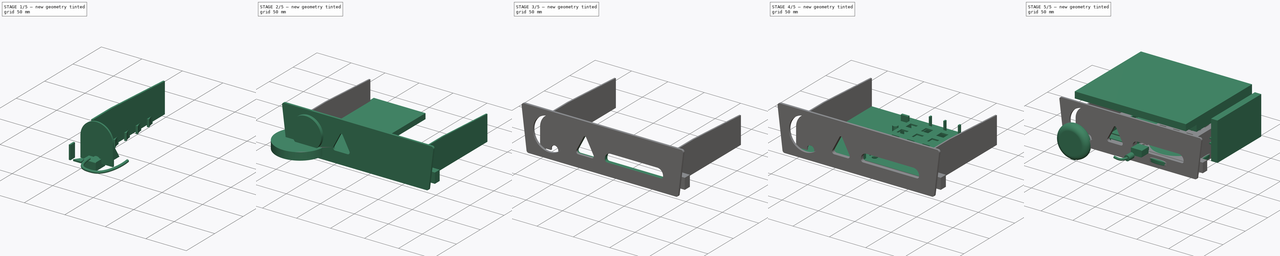
[diagram: build sequence overview — one tinted view per stage of 5, left to right]
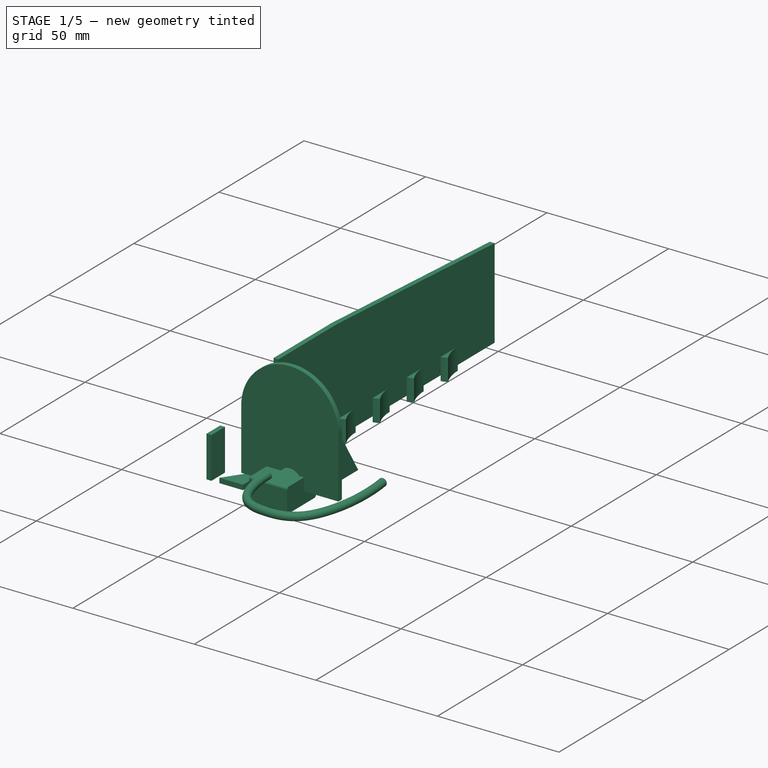
[diagram: stage 1 of 5 — iso view after this stage's code; geometry added in this stage tinted green]
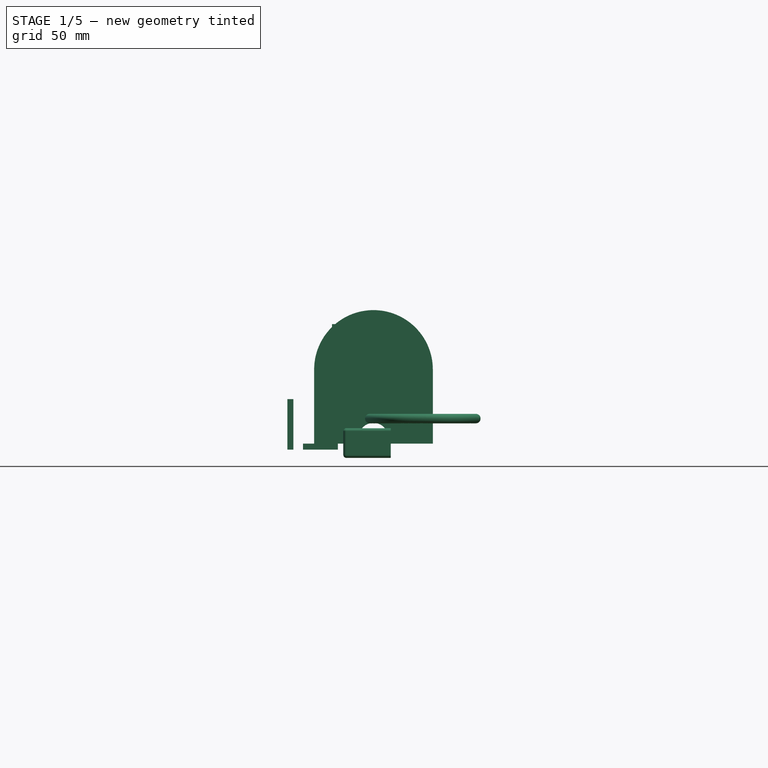
[diagram: stage 1 of 5 — front view after this stage's code; geometry added in this stage tinted green]
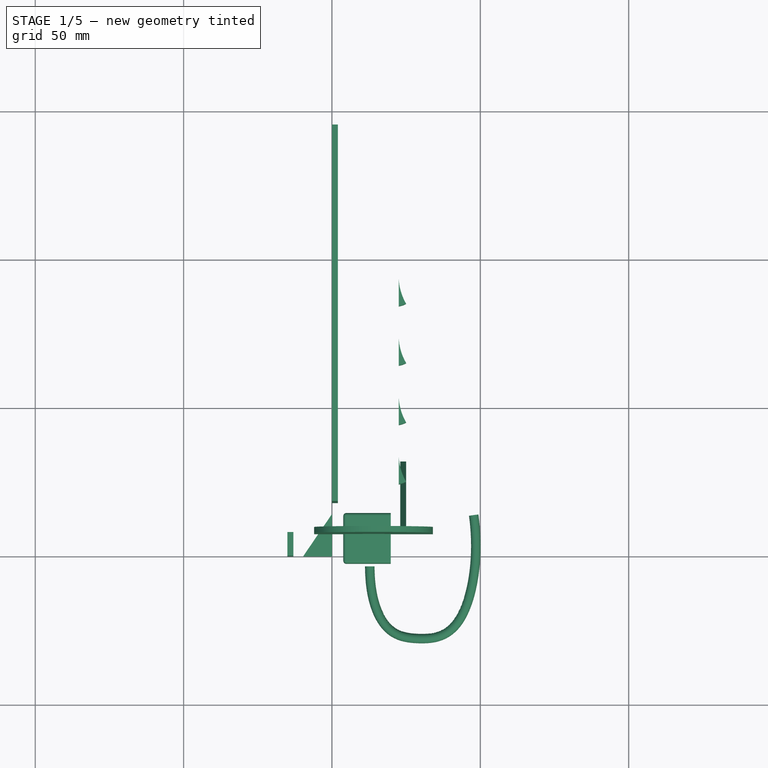
[diagram: stage 1 of 5 — top view after this stage's code; geometry added in this stage tinted green]
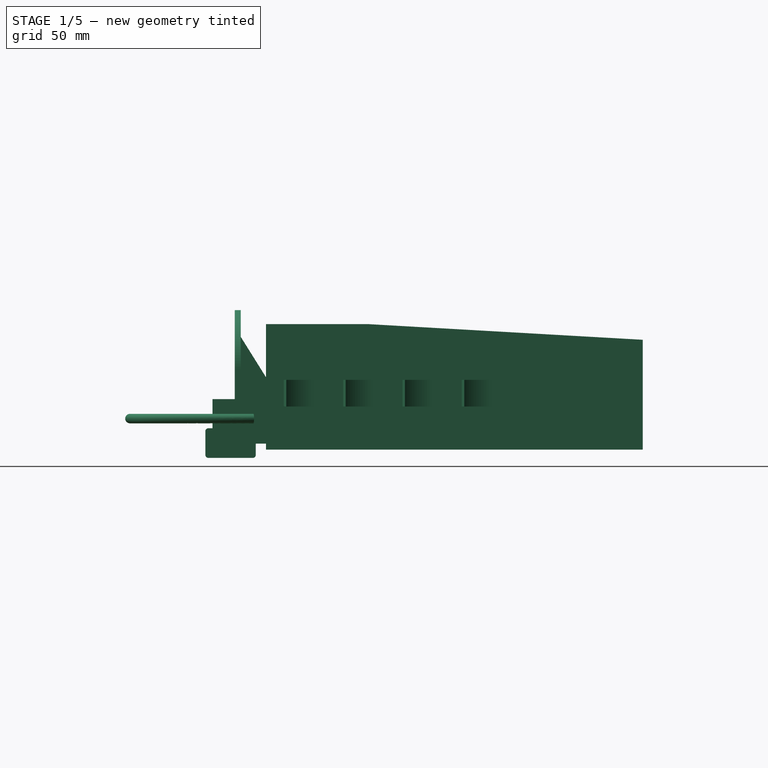
[diagram: stage 1 of 5 — right view after this stage's code; geometry added in this stage tinted green]
FCSTD DOCUMENT  (FreeCAD 0.18.1R)
Label: tray
License: All rights reserved
LicenseURL: http://en.wikipedia.org/wiki/All_rights_reserved
objects: Part::Box×49, Part::FeaturePython×37, Part::Mirroring×30, Part::Cut×28, Part::Cylinder×22, Sketcher::SketchObject×19, PartDesign::Body×15, PartDesign::Pad×14, Part::Fillet×12, Part::Compound×10, Part::MultiFuse×8, App::DocumentObjectGroup×6, Part::Offset×3, PartDesign::AdditivePipe×2, Part::Loft×2, Part::MultiCommon×2, Spreadsheet::Sheet×1, PartDesign::Pocket×1, Part::Cone×1
note: 272 computed .brp shape members not serialized (recipe doc carries the construction recipe); baked Part::Feature solids carry a one-line shape summary decoded from their .brp

FEATURE [Part::Box] Box  label="BottomBack"
  AttacherType = Attacher::AttachEngine3D
  Height = 2
  Length = 174
  Width = 145
  expr: Height = Spreadsheet.thickness
FEATURE [Sketcher::SketchObject] Sketch  label="SBSketch"
  Placement = pos=(0,0,0) rot=(0.57735,-0.57735,-0.57735;2.0944rad)
  expr: Constraints[6] = -(148 - Spreadsheet.face_thickness)
  sketch-geometry (6):
    g0: LineSegment StartX=-145 StartY=0 StartZ=0 EndX=-145 EndY=37 EndZ=0
    g1: LineSegment StartX=-145 StartY=37 StartZ=0 EndX=-52.151 EndY=42.2968 EndZ=0
    g2: LineSegment StartX=0 StartY=0 StartZ=0 EndX=0 EndY=42.2968 EndZ=0
    g3: LineSegment StartX=-52.151 StartY=42.2968 StartZ=0 EndX=0 EndY=42.2968 EndZ=0
    g4: LineSegment [constr] StartX=-52.151 StartY=42.2968 StartZ=0 EndX=-48 EndY=0 EndZ=0
    g5: LineSegment StartX=-145 StartY=0 StartZ=0 EndX=0 EndY=0 EndZ=0
  constraints (17):
    c: Vertical(g0)
    c: DistanceY(g0,g0) = 37
    c: Distance(g1) = 93
    c: Coincident(g1,g0)
    c: Horizontal(g3)
    c: Coincident(g2,g3)
    c: DistanceX(g0) = -145
    c: DistanceY(g0) = 0
    c: Coincident(g1,g3)
    c: Coincident(g-1,g2)
    c: Distance(g4) = 42.5
    c: PointOnObject(g4,g-1)
    c: Coincident(g4,g1)
    c: DistanceX(g0,g4) = 97
    c: Coincident(g5,g0)
    c: Coincident(g2,g5)
    c: DistanceX(g2,g2) = 0
FEATURE [Spreadsheet::Sheet] Spreadsheet
  cells = A1=thickness; B1(thickness)=2; A2=usbhub_thickness; B2(usbhub_thickness)=22.5; A3=usbhub_socket_width; B3(usbhub_socket_width)=15; A4=usbhub_socket_height; B4(usbhub_socket_height)=7.3; A5=usbhub_plug_hoffset; B5(usbhub_plug_hoffset)=20; A6=face_height; B6(face_height)=60; A7=face_top_length; B7(face_top_length)=223; A8=face_bottom_length; B8(face_bottom_length)=208; A9=face_thickness; B9(face_thickness)=3; A10=phonecradle_hrin_margin; B10(phonecradle_hrin_margin)=3; A11=usb_cable_diameter; B11(usb_cable_diameter)=3.5; A12=fit_clearance; B12(fit_clearance)=0.4; A13=blt_sticker_radius; B13(blt_sticker_radius)=20
FEATURE [Sketcher::SketchObject] Sketch002  label="UsbHubSketch"
  MapMode = 5
  Placement = pos=(0,0,0) rot=(1,0,0;1.5708rad)
  Support = -> [XZ_Plane002]
  expr: Constraints[10] = Spreadsheet.usbhub_thickness
  sketch-geometry (5):
    g0: LineSegment StartX=0 StartY=35.75 StartZ=0 EndX=15.5 EndY=35.75 EndZ=0
    g1: LineSegment StartX=15.5 StartY=35.75 StartZ=0 EndX=22.5 EndY=28 EndZ=0
    g2: LineSegment StartX=22.5 StartY=28 StartZ=0 EndX=22.5 EndY=0 EndZ=0
    g3: LineSegment StartX=22.5 StartY=0 StartZ=0 EndX=0 EndY=0 EndZ=0
    g4: LineSegment StartX=0 StartY=0 StartZ=0 EndX=0 EndY=35.75 EndZ=0
  constraints (15):
    c: Horizontal(g0)
    c: Coincident(g0,g1)
    c: Coincident(g1,g2)
    c: Coincident(g2,g3)
    c: Horizontal(g3)
    c: Coincident(g3,g4)
    c: Coincident(g4,g0)
    c: Vertical(g4)
    c: Vertical(g2)
    c: DistanceY(g4,g4) = 35.75
    c: DistanceX(g3,g3) = 22.5
    c: DistanceX(g0,g0) = 15.5
    c: DistanceY(g2,g2) = 28
    c: DistanceX(g3) = 0
    c: DistanceY(g3) = 0
FEATURE [PartDesign::Pad] Pad002  label="UsbHubMainBody"
  Length = 105
  Length2 = 100
  Placement = pos=(0,0,0) rot=(1,0,0;1.5708rad)
  Profile = -> Sketch002
  Reversed = true
  Type = 0
FEATURE [Sketcher::SketchObject] Sketch003  label="light"
  MapMode = 5
  Placement = pos=(26.3189,-5.3e-15,23.7719) rot=(0.406026,0,0.913862;3.14159rad)
  Support = -> [Pad002]
  sketch-geometry (21):
    g0: LineSegment StartX=14 StartY=-22 StartZ=0 EndX=8.5 EndY=-22 EndZ=0
    g1: LineSegment StartX=8.5 StartY=-22 StartZ=0 EndX=8.5 EndY=-37.5 EndZ=0
    g2: LineSegment StartX=8.5 StartY=-37.5 StartZ=0 EndX=14 EndY=-37.5 EndZ=0
    g3: LineSegment StartX=14 StartY=-37.5 StartZ=0 EndX=14 EndY=-22 EndZ=0
    g4: LineSegment StartX=14 StartY=-42 StartZ=0 EndX=8.5 EndY=-42 EndZ=0
    g5: LineSegment StartX=8.5 StartY=-42 StartZ=0 EndX=8.5 EndY=-57.5 EndZ=0
    g6: LineSegment StartX=8.5 StartY=-57.5 StartZ=0 EndX=14 EndY=-57.5 EndZ=0
    g7: LineSegment StartX=14 StartY=-57.5 StartZ=0 EndX=14 EndY=-42 EndZ=0
    g8: LineSegment [constr] StartX=14 StartY=-22 StartZ=0 EndX=14 EndY=-42 EndZ=0
    g9: LineSegment StartX=14 StartY=-62 StartZ=0 EndX=8.5 EndY=-62 EndZ=0
    g10: LineSegment StartX=8.5 StartY=-62 StartZ=0 EndX=8.5 EndY=-77.5 EndZ=0
    g11: LineSegment StartX=8.5 StartY=-77.5 StartZ=0 EndX=14 EndY=-77.5 EndZ=0
    g12: LineSegment StartX=14 StartY=-77.5 StartZ=0 EndX=14 EndY=-62 EndZ=0
    g13: LineSegment [constr] StartX=14 StartY=-42 StartZ=0 EndX=14 EndY=-62 EndZ=0
    g14: LineSegment StartX=14 StartY=-82 StartZ=0 EndX=8.5 EndY=-82 EndZ=0
    g15: LineSegment StartX=8.5 StartY=-82 StartZ=0 EndX=8.5 EndY=-97.5 EndZ=0
    g16: LineSegment StartX=8.5 StartY=-97.5 StartZ=0 EndX=14 EndY=-97.5 EndZ=0
    g17: LineSegment StartX=14 StartY=-97.5 StartZ=0 EndX=14 EndY=-82 EndZ=0
    g18: LineSegment [constr] StartX=14 StartY=-62 StartZ=0 EndX=14 EndY=-82 EndZ=0
    g19: LineSegment [constr] StartX=16 StartY=0 StartZ=0 EndX=16 EndY=-106.492 EndZ=0
    g20: LineSegment [constr] StartX=16 StartY=-25.5232 StartZ=0 EndX=14 EndY=-25.5232 EndZ=0
  constraints (59):
    c: Coincident(g0,g1)
    c: Coincident(g1,g2)
    c: Coincident(g2,g3)
    c: Coincident(g3,g0)
    c: Horizontal(g0)
    c: Horizontal(g2)
    c: Vertical(g1)
    c: Vertical(g3)
    c: DistanceY(g1,g1) = 15.5
    c: DistanceX(g2,g2) = 5.5
    c: DistanceY(g0) = -22
    c: Coincident(g4,g5)
    c: Coincident(g5,g6)
    c: Coincident(g6,g7)
    c: Coincident(g7,g4)
    c: Horizontal(g4)
    c: Horizontal(g6)
    c: Vertical(g5)
    c: Vertical(g7)
    c: DistanceY(g5,g5) = 15.5
    c: DistanceX(g6,g6) = 5.5
    c: Coincident(g0,g8)
    c: Coincident(g4,g8)
    c: Distance(g8) = 20
    c: Angle(g8) = -1.5708
    c: Coincident(g9,g10)
    c: Coincident(g10,g11)
    c: Coincident(g11,g12)
    c: Coincident(g12,g9)
    c: Horizontal(g9)
    c: Horizontal(g11)
    c: Vertical(g10)
    c: Vertical(g12)
    c: DistanceY(g10,g10) = 15.5
    c: DistanceX(g11,g11) = 5.5
    c: Coincident(g4,g13)
    c: Coincident(g9,g13)
    c: Equal(g8,g13)
    c: Parallel(g13,g8)
    c: Coincident(g14,g15)
    c: Coincident(g15,g16)
    c: Coincident(g16,g17)
    c: Coincident(g17,g14)
    c: Horizontal(g14)
    c: Horizontal(g16)
    c: Vertical(g15)
    c: Vertical(g17)
    c: DistanceY(g15,g15) = 15.5
    c: DistanceX(g16,g16) = 5.5
    c: Coincident(g9,g18)
    c: Coincident(g14,g18)
    c: Equal(g8,g18)
    c: Parallel(g18,g8)
    c: Vertical(g19)
    c: DistanceX(g19) = 16
    c: DistanceY(g19) = 0
    c: PointOnObject(g20,g19)
    c: PointOnObject(g20,g3)
    c: Distance(g20) = 2
FEATURE [PartDesign::Pad] Pad003  label="lights"
  BaseFeature = -> Pad002
  Length = 0.3
  Length2 = 100
  Placement = pos=(0,0,0) rot=(1,0,0;1.5708rad)
  Profile = -> Sketch003
  Type = 0
FEATURE [Part::Cylinder] Cylinder  label="Jack"
  Angle = 360
  AttacherType = Attacher::AttachEngine3D
  Height = 2
  Placement = pos=(11.75,0,26.5) rot=(1,0,0;1.5708rad)
  Radius = 1.75
  expr: Placement.Base.z = UsbHubBody.Placement.Base.z + 26.5mm
  expr: Placement.Base.y = UsbHubBody.Placement.Base.y
  expr: Placement.Base.x = UsbHubBody.Placement.Base.x + 10mm + Radius
FEATURE [Sketcher::SketchObject] Sketch004
  MapMode = 5
  Support = -> [XY_Plane003]
  sketch-geometry (9):
    g0: LineSegment StartX=4.82843 StartY=-2 StartZ=0 EndX=4.82843 EndY=2 EndZ=0
    g1: LineSegment StartX=4.82843 StartY=2 StartZ=0 EndX=2 EndY=4.82843 EndZ=0
    g2: LineSegment StartX=2 StartY=4.82843 StartZ=0 EndX=-2 EndY=4.82843 EndZ=0
    g3: LineSegment StartX=-2 StartY=4.82843 StartZ=0 EndX=-4.82843 EndY=2 EndZ=0
    g4: LineSegment StartX=-4.82843 StartY=2 StartZ=0 EndX=-4.82843 EndY=-2 EndZ=0
    g5: LineSegment StartX=-4.82843 StartY=-2 StartZ=0 EndX=-2 EndY=-4.82843 EndZ=0
    g6: LineSegment StartX=-2 StartY=-4.82843 StartZ=0 EndX=2 EndY=-4.82843 EndZ=0
    g7: LineSegment StartX=2 StartY=-4.82843 StartZ=0 EndX=4.82843 EndY=-2 EndZ=0
    g8: Circle [constr] CenterX=0 CenterY=0 CenterZ=0 NormalX=0 NormalY=0 NormalZ=1 AngleXU=0 Radius=5.22625
  constraints (21):
    c: Coincident(g0,g1)
    c: Coincident(g1,g2)
    c: Coincident(g2,g3)
    c: Coincident(g3,g4)
    c: Coincident(g4,g5)
    c: Coincident(g5,g6)
    c: Coincident(g6,g7)
    c: Coincident(g7,g0)
    c: Equal(g0, g1-g7) x7
    c: PointOnObject(g0,g8)
    c: PointOnObject(g1,g8)
    c: PointOnObject(g2,g8)
    c: PointOnObject(g3,g8)
    c: PointOnObject(g4,g8)
    c: PointOnObject(g5,g8)
    c: PointOnObject(g6,g8)
    c: PointOnObject(g7,g8)
    c: Distance(g7) = 4
    c: Horizontal(g2)
    c: DistanceX(g8) = 0
    c: DistanceY(g8) = 0
FEATURE [PartDesign::Pad] Pad004  label="PowerPlugHeight"
  Length = 21.5
  Length2 = 100
  Profile = -> Sketch004
  Type = 0
FEATURE [PartDesign::Body] Body003  label="PowerPlug"
  Group = -> [Sketch004,Pad004]
  Origin = -> Origin003
  Placement = pos=(11.75,-2,26.5) rot=(1,0,0;1.5708rad)
  Tip = -> Pad004
  expr: Placement.Base.z = Jack.Placement.Base.z
  expr: Placement.Base.y = Jack.Placement.Base.y - Jack.Height
  expr: Placement.Base.x = Jack.Placement.Base.x
FEATURE [Part::Cylinder] Cylinder001  label="Sleeve"
  Angle = 360
  AttacherType = Attacher::AttachEngine3D
  Height = 10
  Placement = pos=(11.75,-23.5,26.5) rot=(1,0,0;1.5708rad)
  Radius = 3.25
  expr: Placement.Base.z = PowerPlug.Placement.Base.z
  expr: Placement.Base.y = PowerPlug.Placement.Base.y - PowerPlugHeight.Length
  expr: Placement.Base.x = PowerPlug.Placement.Base.x
FEATURE [Sketcher::SketchObject] Sketch006
  MapMode = 5
  Support = -> [XY_Plane004]
  sketch-geometry (13):
    g0-g6: Circle [constr] x7 (B-spline internal-alignment scaffolding for g7; pole/knot coordinates omitted)
    g7: BSplineCurve PolesCount=7 KnotsCount=5 Degree=3 IsPeriodic=0
    g8-g12: GeomPoint [constr] x5 (B-spline internal-alignment scaffolding for g7; pole/knot coordinates omitted)
  constraints (9):
    c: Coincident(g7,g-1)
    c: Radius(g0) = 2
    c: Equal(g0,g1)
    c: PointOnObject(g1,g-1)
    c: Equal(g0, g2-g6) x5
    c: InternalAlignment(g0-g6 -> g7) x7
    c: InternalAlignment(g8-g12 -> g7) x5
    c: DistanceX(g3) = -25
    c: DistanceY(g5,g1) = 37
FEATURE [Sketcher::SketchObject] Sketch007
  MapMode = 5
  Placement = pos=(0,0,0) rot=(0.57735,0.57735,0.57735;2.0944rad)
  Support = -> [YZ_Plane004]
  sketch-geometry (1):
    g0: Circle CenterX=0 CenterY=0 CenterZ=0 NormalX=0 NormalY=0 NormalZ=1 AngleXU=0 Radius=1.6
  constraints (3):
    c: Radius(g0) = 1.6
    c: DistanceX(g0) = 0
    c: DistanceY(g0) = 0
FEATURE [Sketcher::SketchObject] Sketch010  label="PlugsSketch"
  MapMode = 5
  Placement = pos=(22.5,0,0) rot=(0.707107,0,0.707107;3.14159rad)
  Support = -> [Pad002]
  expr: Constraints[24] = Spreadsheet.usbhub_plug_hoffset
  expr: Constraints[34] = Spreadsheet.usbhub_socket_height
  expr: Constraints[48] = Spreadsheet.usbhub_socket_height
  expr: Constraints[8] = Spreadsheet.usbhub_socket_height
  expr: Constraints[20] = Spreadsheet.usbhub_socket_height
  expr: Constraints[49] = Spreadsheet.usbhub_socket_width
  expr: Constraints[35] = Spreadsheet.usbhub_socket_width
  expr: Constraints[21] = Spreadsheet.usbhub_socket_width
  expr: Constraints[9] = Spreadsheet.usbhub_socket_width
  sketch-geometry (38):
    g0: LineSegment StartX=10.3 StartY=-22 StartZ=0 EndX=3 EndY=-22 EndZ=0
    g1: LineSegment StartX=3 StartY=-22 StartZ=0 EndX=3 EndY=-37 EndZ=0
    g2: LineSegment StartX=3 StartY=-37 StartZ=0 EndX=10.3 EndY=-37 EndZ=0
    g3: LineSegment StartX=10.3 StartY=-37 StartZ=0 EndX=10.3 EndY=-22 EndZ=0
    g4: LineSegment StartX=10.3 StartY=-42 StartZ=0 EndX=3 EndY=-42 EndZ=0
    g5: LineSegment StartX=3 StartY=-42 StartZ=0 EndX=3 EndY=-57 EndZ=0
    g6: LineSegment StartX=3 StartY=-57 StartZ=0 EndX=10.3 EndY=-57 EndZ=0
    g7: LineSegment StartX=10.3 StartY=-57 StartZ=0 EndX=10.3 EndY=-42 EndZ=0
    g8: LineSegment [constr] StartX=10.3 StartY=-22 StartZ=0 EndX=10.3 EndY=-42 EndZ=0
    g9: LineSegment StartX=10.3 StartY=-62 StartZ=0 EndX=3 EndY=-62 EndZ=0
    g10: LineSegment StartX=3 StartY=-62 StartZ=0 EndX=3 EndY=-77 EndZ=0
    g11: LineSegment StartX=3 StartY=-77 StartZ=0 EndX=10.3 EndY=-77 EndZ=0
    g12: LineSegment StartX=10.3 StartY=-77 StartZ=0 EndX=10.3 EndY=-62 EndZ=0
    g13: LineSegment [constr] StartX=10.3 StartY=-42 StartZ=0 EndX=10.3 EndY=-62 EndZ=0
    g14: LineSegment StartX=10.3 StartY=-82 StartZ=0 EndX=3 EndY=-82 EndZ=0
    g15: LineSegment StartX=3 StartY=-82 StartZ=0 EndX=3 EndY=-97 EndZ=0
    g16: LineSegment StartX=3 StartY=-97 StartZ=0 EndX=10.3 EndY=-97 EndZ=0
    g17: LineSegment StartX=10.3 StartY=-97 StartZ=0 EndX=10.3 EndY=-82 EndZ=0
    g18: LineSegment [constr] StartX=10.3 StartY=-62 StartZ=0 EndX=10.3 EndY=-82 EndZ=0
    g19: LineSegment StartX=13.5 StartY=-22 StartZ=0 EndX=24.5 EndY=-22 EndZ=0
    g20: LineSegment StartX=24.5 StartY=-22 StartZ=0 EndX=24.5 EndY=-37 EndZ=0
    g21: LineSegment StartX=24.5 StartY=-37 StartZ=0 EndX=13.5 EndY=-37 EndZ=0
    g22: LineSegment StartX=13.5 StartY=-37 StartZ=0 EndX=13.5 EndY=-22 EndZ=0
    g23: LineSegment StartX=13.5116 StartY=-42 StartZ=0 EndX=24.5116 EndY=-42 EndZ=0
    g24: LineSegment StartX=24.5116 StartY=-42 StartZ=0 EndX=24.5116 EndY=-57 EndZ=0
    g25: LineSegment StartX=24.5116 StartY=-57 StartZ=0 EndX=13.5116 EndY=-57 EndZ=0
    g26: LineSegment StartX=13.5116 StartY=-57 StartZ=0 EndX=13.5116 EndY=-42 EndZ=0
    g27: LineSegment [constr] StartX=13.5 StartY=-22 StartZ=0 EndX=13.5116 EndY=-42 EndZ=0
    g28: LineSegment StartX=13.5232 StartY=-62 StartZ=0 EndX=24.5232 EndY=-62 EndZ=0
    g29: LineSegment StartX=24.5232 StartY=-62 StartZ=0 EndX=24.5232 EndY=-77 EndZ=0
    g30: LineSegment StartX=24.5232 StartY=-77 StartZ=0 EndX=13.5232 EndY=-77 EndZ=0
    g31: LineSegment StartX=13.5232 StartY=-77 StartZ=0 EndX=13.5232 EndY=-62 EndZ=0
    g32: LineSegment [constr] StartX=13.5116 StartY=-42 StartZ=0 EndX=13.5232 EndY=-62 EndZ=0
    g33: LineSegment StartX=13.5349 StartY=-82 StartZ=0 EndX=24.5349 EndY=-82 EndZ=0
    g34: LineSegment StartX=24.5349 StartY=-82 StartZ=0 EndX=24.5349 EndY=-97 EndZ=0
    g35: LineSegment StartX=24.5349 StartY=-97 StartZ=0 EndX=13.5349 EndY=-97 EndZ=0
    g36: LineSegment StartX=13.5349 StartY=-97 StartZ=0 EndX=13.5349 EndY=-82 EndZ=0
    g37: LineSegment [constr] StartX=13.5232 StartY=-62 StartZ=0 EndX=13.5349 EndY=-82 EndZ=0
  constraints (108):
    c: Coincident(g0,g1)
    c: Coincident(g1,g2)
    c: Coincident(g2,g3)
    c: Coincident(g3,g0)
    c: Horizontal(g0)
    c: Horizontal(g2)
    c: Vertical(g1)
    c: Vertical(g3)
    c: DistanceX(g2,g2) = 7.3
    c: DistanceY(g3,g3) = 15
    c: DistanceX(g0) = 3
    c: DistanceY(g0) = -22
    c: Coincident(g4,g5)
    c: Coincident(g5,g6)
    c: Coincident(g6,g7)
    c: Coincident(g7,g4)
    c: Horizontal(g4)
    c: Horizontal(g6)
    c: Vertical(g5)
    c: Vertical(g7)
    c: DistanceX(g6,g6) = 7.3
    c: DistanceY(g7,g7) = 15
    c: Coincident(g0,g8)
    c: Coincident(g4,g8)
    c: Distance(g8) = 20
    c: Angle(g8) = -1.5708
    c: Coincident(g9,g10)
    c: Coincident(g10,g11)
    c: Coincident(g11,g12)
    c: Coincident(g12,g9)
    c: Horizontal(g9)
    c: Horizontal(g11)
    c: Vertical(g10)
    c: Vertical(g12)
    c: DistanceX(g11,g11) = 7.3
    c: DistanceY(g12,g12) = 15
    c: Coincident(g4,g13)
    c: Coincident(g9,g13)
    c: Equal(g8,g13)
    c: Parallel(g13,g8)
    c: Coincident(g14,g15)
    c: Coincident(g15,g16)
    c: Coincident(g16,g17)
    c: Coincident(g17,g14)
    c: Horizontal(g14)
    c: Horizontal(g16)
    c: Vertical(g15)
    c: Vertical(g17)
    c: DistanceX(g16,g16) = 7.3
    c: DistanceY(g17,g17) = 15
    c: Coincident(g9,g18)
    c: Coincident(g14,g18)
    c: Equal(g8,g18)
    c: Parallel(g18,g8)
    c: Coincident(g19,g20)
    c: Coincident(g20,g21)
    c: Coincident(g21,g22)
    c: Coincident(g22,g19)
    c: Horizontal(g19)
    c: Horizontal(g21)
    c: Vertical(g20)
    c: Vertical(g22)
    c: Distance(g19) = 11
    c: Distance(g20) = 15
    c: DistanceY(g0,g19) = 0
    c: DistanceX(g0,g19) = 3.2
    c: Coincident(g23,g24)
    c: Coincident(g24,g25)
    c: Coincident(g25,g26)
    c: Coincident(g26,g23)
    c: Horizontal(g23)
    c: Horizontal(g25)
    c: Vertical(g24)
    c: Vertical(g26)
    c: Distance(g23) = 11
    c: Distance(g24) = 15
    c: Coincident(g19,g27)
    c: Coincident(g23,g27)
    c: Distance(g27) = 20
    c: Angle(g27) = -1.57022
    c: Coincident(g28,g29)
    c: Coincident(g29,g30)
    c: Coincident(g30,g31)
    c: Coincident(g31,g28)
    c: Horizontal(g28)
    c: Horizontal(g30)
    c: Vertical(g29)
    c: Vertical(g31)
    c: Distance(g28) = 11
    c: Distance(g29) = 15
    c: Coincident(g23,g32)
    c: Coincident(g28,g32)
    c: Equal(g27,g32)
    c: Parallel(g32,g27)
    c: Coincident(g33,g34)
    c: Coincident(g34,g35)
    c: Coincident(g35,g36)
    c: Coincident(g36,g33)
    c: Horizontal(g33)
    c: Horizontal(g35)
    c: Vertical(g34)
    c: Vertical(g36)
    c: Distance(g33) = 11
    c: Distance(g34) = 15
    c: Coincident(g28,g37)
    c: Coincident(g33,g37)
    c: Equal(g27,g37)
    c: Parallel(g37,g27)
FEATURE [PartDesign::Pocket] Pocket
  BaseFeature = -> Pad003
  Length = 2
  Length2 = 100
  Placement = pos=(0,0,0) rot=(1,0,0;1.5708rad)
  Profile = -> Sketch010
  Type = 0
FEATURE [PartDesign::Body] Body002  label="UsbHubBody"
  Group = -> [Sketch002,Pad002,Sketch003,Pad003,Sketch010,Pocket]
  Origin = -> Origin002
  Tip = -> Pocket
  expr: Placement.Base.z = 0
  expr: Placement.Base.y = 0
FEATURE [Part::Box] Box001  label="UsbJack"
  AttacherType = Attacher::AttachEngine3D
  Height = 4.4
  Length = 3.83
  Width = 12.15
FEATURE [PartDesign::AdditivePipe] AdditivePipe
  AuxilleryCurvelinear = true
  AuxillerySpineTangent = false
  Binormal = (0,0,0)
  Mode = 0
  Placement = pos=(0,0,0) rot=(0.57735,0.57735,0.57735;2.0944rad)
  Profile = -> Sketch007
  Spine = -> Sketch006 [Edge1]
  SpineTangent = false
  Transformation = 0
  Transition = 0
FEATURE [PartDesign::Body] Body006  label="UsbCord"
  Group = -> [Sketch013,Sketch015,AdditivePipe001]
  Origin = -> Origin007
  Placement = pos=(40.83,6.075,2.2) rot=(1,0,0;2.96706rad)
  Tip = -> AdditivePipe001
  expr: Placement.Base.z = UsbJack.Placement.Base.z + UsbJack.Height / 2
  expr: Placement.Base.x = UsbSleeve.Placement.Base.x + UsbSleeve.Height
  expr: Placement.Base.y = UsbJack.Placement.Base.y + UsbJack.Width / 2
FEATURE [Part::Box] Box002  label="UsbBodyFrontCube"
  AttacherType = Attacher::AttachEngine3D
  Height = 10
  Length = 16
  Placement = pos=(3.83,-2.425,-2.8) rot=(0,0,1;0rad)
  Width = 17
  expr: Placement.Base.z = UsbJack.Placement.Base.z + UsbJack.Height / 2 - Height / 2
  expr: Placement.Base.y = UsbJack.Placement.Base.y + UsbJack.Width / 2 - Width / 2
  expr: Placement.Base.x = UsbJack.Placement.Base.x + UsbJack.Length
FEATURE [Part::Fillet] Fillet  label="UsbBodyFront"
  Base = -> Box002
  Edges = 8 edges r=1: [Edge1,Edge2,Edge3,Edge4,Edge9,Edge10,Edge11,Edge12]
FEATURE [Part::Cylinder] Cylinder006  label="BluetoothBody"
  Angle = 360
  AttacherType = Attacher::AttachEngine3D
  Height = 12.5
  Placement = pos=(0,0,0) rot=(1,0,0;1.5708rad)
  Radius = 25
FEATURE [Sketcher::SketchObject] Sketch020
  MapMode = 5
  Placement = pos=(0,0,0) rot=(1,0,0;1.5708rad)
  Support = -> [XZ_Plane012]
  expr: Constraints[4] = Spreadsheet.face_top_length
  expr: Constraints[5] = Spreadsheet.face_bottom_length
  expr: Constraints[6] = Spreadsheet.face_height
  sketch-geometry (4):
    g0: LineSegment StartX=-111.5 StartY=60 StartZ=0 EndX=111.5 EndY=60 EndZ=0
    g1: LineSegment StartX=111.5 StartY=60 StartZ=0 EndX=104 EndY=0 EndZ=0
    g2: LineSegment StartX=104 StartY=0 StartZ=0 EndX=-104 EndY=0 EndZ=0
    g3: LineSegment StartX=-104 StartY=0 StartZ=0 EndX=-111.5 EndY=60 EndZ=0
  constraints (10):
    c: Coincident(g0,g1)
    c: Coincident(g1,g2)
    c: Coincident(g2,g3)
    c: Coincident(g3,g0)
    c: Distance(g0) = 223
    c: Distance(g2) = 208
    c: DistanceY(g2,g0) = 60
    c: Symmetric(g0,g0,g-2)
    c: Symmetric(g1,g2,g-2)
    c: DistanceY(g2) = 0
FEATURE [PartDesign::Pad] Pad009
  Length = 3
  Length2 = 100
  Placement = pos=(0,0,0) rot=(1,0,0;1.5708rad)
  Profile = -> Sketch020
  Type = 0
  expr: Length = Spreadsheet.face_thickness
FEATURE [PartDesign::Body] Body011  label="FaceRect"
  Group = -> [Sketch020,Pad009]
  Origin = -> Origin012
  Placement = pos=(87,0,-4) rot=(1,0,0;0rad)
  Tip = -> Pad009
  expr: Placement.Base.y = BottomBack.Placement.Base.y
  expr: Placement.Base.x = BottomBack.Placement.Base.x + BottomBack.Length / 2
FEATURE [Part::Fillet] Fillet008  label="Face"
  Base = -> Body011
  Edges = 4 edges r=3: [Edge1,Edge2,Edge5,Edge8]
FEATURE [PartDesign::Pad] Pad  label="SidePad"
  Length = 2
  Length2 = 100
  Placement = pos=(0,0,0) rot=(0.57735,-0.57735,-0.57735;2.0944rad)
  Profile = -> Sketch
  Reversed = true
  Type = 0
  expr: Length = Spreadsheet.thickness
FEATURE [Part::Box] Box012  label="Front"
  AttacherType = Attacher::AttachEngine3D
  Height = 54
  Length = 204
  Placement = pos=(-15,0,0) rot=(0,0,1;0rad)
  Width = 2
  expr: Placement.Base.x = BottomBack.Placement.Base.x + (BottomBack.Length - Length) / 2
  expr: Width = Spreadsheet.thickness
  expr: Length = BottomBack.Length + 2 * 15mm
FEATURE [Part::Cylinder] Cylinder008  label="BluetoothSleeve"
  Angle = 360
  AttacherType = Attacher::AttachEngine3D
  Height = 7
  Placement = pos=(0,-3.35,-23) rot=(-1,0,0;1.5708rad)
  Radius = 2
  expr: Placement.Base.z = Bluetooth.Placement.Base.z - BluetoothBody.Radius + Radius
  expr: Placement.Base.y = Bluetooth.Placement.Base.y
  expr: Placement.Base.x = Bluetooth.Placement.Base.x
FEATURE [Sketcher::SketchObject] Sketch021
  MapMode = 5
  Support = -> [XY_Plane013]
  sketch-geometry (5):
    g0: LineSegment StartX=-6.926e-13 StartY=10 StartZ=0 EndX=-6.926e-13 EndY=-4.09e-14 EndZ=0
    g1: LineSegment [constr] StartX=0 StartY=0.834849 StartZ=0 EndX=2.5 EndY=0.834849 EndZ=0
    g2: LineSegment [constr] StartX=-6.926e-13 StartY=10 StartZ=0 EndX=2.5 EndY=0.834849 EndZ=0
    g3: ArcOfCircle CenterX=18.4098 CenterY=10.0982 CenterZ=0 NormalX=0 NormalY=0 NormalZ=1 AngleXU=0 Radius=18.4101 StartAngle=3.14692 EndAngle=3.66885
    g4: ArcOfCircle CenterX=-1.19715 CenterY=7.74556 CenterZ=0 NormalX=0 NormalY=0 NormalZ=1 AngleXU=0 Radius=7.83753 StartAngle=4.86574 EndAngle=5.20363
  constraints (16):
    c: Vertical(g0)
    c: Distance(g0) = 10
    c: Horizontal(g1)
    c: Distance(g1) = 2.5
    c: PointOnObject(g1,g0)
    c: Coincident(g2,g0)
    c: Coincident(g2,g1)
    c: Coincident(g3,g1)
    c: Coincident(g4,g3)
    c: Coincident(g0,g4)
    c: Coincident(g0,g3)
    c: Distance(g2) = 9.5
    c: DistanceX(g3,g0) = -18.4098
    c: DistanceX(g4,g0) = 1.19715
    c: DistanceX(g0) = 0
    c: DistanceY(g0) = 0
FEATURE [PartDesign::Pad] Pad010  label="Pad011"
  Length = 9
  Length2 = 100
  Profile = -> Sketch021
  Type = 0
FEATURE [PartDesign::Body] Body012  label="HubButtonBody"
  Group = -> [Sketch021,Pad010]
  Origin = -> Origin013
  Tip = -> Pad010
FEATURE [Part::FeaturePython] Array002  label="UsbHubButtons"  # Draft array (typed FeaturePython)
  Angle = 360
  ArrayType = 0
  Axis = (0,0,1)
  Base = -> Body012
  Center = (0,0,0)
  Fuse = false
  IntervalAxis = (0,0,0)
  IntervalX = (1,0,0)
  IntervalY = (0,20,0)
  IntervalZ = (0,0,1)
  NumberPolar = 1
  NumberX = 1
  NumberY = 4
  NumberZ = 1
  Placement = pos=(22.5,24,14.5) rot=(0,0,1;0rad)
  expr: Placement.Base.z = UsbHubBody.Placement.Base.z + 14.5mm
  expr: Placement.Base.x = UsbHubBody.Placement.Base.x + Spreadsheet.usbhub_thickness * 1mm
FEATURE [Part::Cylinder] Cylinder011  label="UsbhHubUsbSleeve"
  Angle = 360
  AttacherType = Attacher::AttachEngine3D
  Height = 3.5
  Placement = pos=(12.75,0,10.45) rot=(1,0,0;1.5708rad)
  Radius = 2.75
  expr: Placement.Base.z = UsbHubBody.Placement.Base.z + 13.2mm - Radius
  expr: Placement.Base.y = UsbHubBody.Placement.Base.y
  expr: Placement.Base.x = UsbHubBody.Placement.Base.x + 10mm + Radius
FEATURE [Part::FeaturePython] Clone004  label="Cable001"  # Draft clone (typed FeaturePython)
  AttacherType = Attacher::AttachEngine3D
  Fuse = false
  Objects = -> [Body004]
  Placement = pos=(12.75,-3.5,10.45) rot=(0,0,1;1.5708rad)
  Scale = (1,1,1)
  expr: Placement.Base.z = UsbhHubUsbSleeve.Placement.Base.z
  expr: Placement.Base.y = UsbhHubUsbSleeve.Placement.Base.y - UsbhHubUsbSleeve.Height
  expr: Placement.Base.x = UsbhHubUsbSleeve.Placement.Base.x
FEATURE [Part::Box] Box044  label="SideBottomBump"
  AttacherType = Attacher::AttachEngine3D
  Height = 15
  Length = 16.5
  Placement = pos=(-17,10.5,0) rot=(0,0,1;0rad)
  Width = 10
  expr: Placement.Base.y = Face.Placement.Base.x + 13.5mm - Spreadsheet.face_thickness * 1mm
  expr: Placement.Base.x = BottomBack.Placement.Base.x + BottomBack.Length / 2 - Spreadsheet.face_bottom_length / 2 * 1mm
FEATURE [Part::Cone] Cone  label="Bluetooth"
  Angle = 360
  AttacherType = Attacher::AttachEngine3D
  Height = 12.5
  Placement = pos=(0,-3.35,0) rot=(1,0,0;1.5708rad)
  Radius1 = 25
  Radius2 = 22.75
  expr: Placement.Base.y = BluetoothBase.Placement.Base.y - BluetoothBase.Height
FEATURE [Part::Cylinder] Cylinder019  label="BluetoothBase"
  Angle = 360
  AttacherType = Attacher::AttachEngine3D
  Height = 3.35
  Placement = pos=(0,0,0) rot=(1,0,0;1.5708rad)
  Radius = 24
FEATURE [Part::Fillet] Fillet011
  Base = -> Cylinder019
  Edges = 1 edges r=3.35: [Edge3]
FEATURE [Part::Compound] Compound005  label="BluetoothCmp"
  Links = -> [Cylinder008,Cone,Fillet011]
  Placement = pos=(14,7.5,27) rot=(0,0,1;0rad)
  expr: Placement.Base.z = BottomBack.Placement.Base.z + Spreadsheet.thickness * 1mm + BluetoothBody.Radius + 2mm - 2mm
  expr: Placement.Base.y = SideBottomBump.Placement.Base.y - 3mm
FEATURE [Part::Box] Box046  label="BltBack"
  AttacherType = Attacher::AttachEngine3D
  Height = 45
  Length = 40
  Placement = pos=(-6,7.5,2) rot=(0,0,1;0rad)
  Width = 2
  expr: Placement.Base.z = BottomBack.Placement.Base.z + BottomBack.Height
  expr: Height = BluetoothCmp.Placement.Base.z + Spreadsheet.blt_sticker_radius * 1mm - BottomBack.Placement.Base.z - BottomBack.Height
  expr: Placement.Base.y = BluetoothCmp.Placement.Base.y
  expr: Placement.Base.x = BluetoothCmp.Placement.Base.x - Length / 2
FEATURE [Part::Cylinder] Cylinder020  label="BltBackHoleRound"
  Angle = 360
  AttacherType = Attacher::AttachEngine3D
  Height = 4
  Placement = pos=(14,10.5,4) rot=(1,0,0;1.5708rad)
  Radius = 5
  expr: Placement.Base.y = BltBack.Placement.Base.y + BltBack.Width / 2 + Height / 2
  expr: Placement.Base.x = BltBack.Placement.Base.x + BltBack.Length / 2
  expr: Placement.Base.z = BluetoothCmp.Placement.Base.z + BluetoothSleeve.Placement.Base.z
  expr: Height = 2 * BltBack.Width
FEATURE [Part::Cut] Cut024
  Base = -> Box046
  Tool = -> Cylinder020
FEATURE [Part::Box] Box047  label="BltBackHoleRect"
  AttacherType = Attacher::AttachEngine3D
  Height = 5
  Length = 10
  Placement = pos=(9,6.5,-1) rot=(0,0,1;0rad)
  Width = 4
  expr: Placement.Base.y = BltBackHoleRound.Placement.Base.y - BltBackHoleRound.Height
  expr: Placement.Base.x = BltBackHoleRound.Placement.Base.x - Length / 2
  expr: Placement.Base.z = BltBackHoleRound.Placement.Base.z - Height
  expr: Height = BltBackHoleRound.Radius
  expr: Width = BltBackHoleRound.Height
  expr: Length = BltBackHoleRound.Radius * 2
FEATURE [Part::Cut] Cut025
  Base = -> Cut024
  Tool = -> Box047
FEATURE [Sketcher::SketchObject] Sketch024
  MapMode = 5
  Placement = pos=(0,0,0) rot=(0.57735,0.57735,0.57735;2.0944rad)
  Support = -> [YZ_Plane016]
  expr: Constraints[6] = BltBack.Height / 2
  expr: Constraints[5] = BltBack.Height * 4 / 5
  sketch-geometry (3):
    g0: LineSegment StartX=0 StartY=36 StartZ=0 EndX=0 EndY=0 EndZ=0
    g1: LineSegment StartX=0 StartY=0 StartZ=0 EndX=22.5 EndY=0 EndZ=0
    g2: LineSegment StartX=22.5 StartY=0 StartZ=0 EndX=0 EndY=36 EndZ=0
  constraints (9):
    c: Vertical(g0)
    c: Coincident(g0,g1)
    c: Horizontal(g1)
    c: Coincident(g1,g2)
    c: Coincident(g2,g0)
    c: Distance(g0) = 36
    c: Distance(g1) = 22.5
    c: DistanceX(g0) = 0
    c: DistanceY(g0) = 0
FEATURE [PartDesign::Pad] Pad013  label="BltBackSupportLPad"
  Length = 2
  Length2 = 100
  Placement = pos=(0,0,0) rot=(0.57735,0.57735,0.57735;2.0944rad)
  Profile = -> Sketch024
  Type = 0
  expr: Length = Spreadsheet.thickness
FEATURE [PartDesign::Body] Body015  label="BltBackSupportL"
  Group = -> [Sketch024,Pad013]
  Origin = -> Origin016
  Placement = pos=(3,9.5,2) rot=(0,0,1;0rad)
  Tip = -> Pad013
  expr: Placement.Base.z = BltBack.Placement.Base.z
  expr: Placement.Base.y = BltBack.Placement.Base.y + BltBack.Width
FEATURE [Part::Mirroring] Part__Mirroring030  label="BltBackSupportR"
  Base = (14,0,0)
  Normal = (1,0,0)
  Source = -> Body015
  expr: Base.x = BltBack.Placement.Base.x + BltBack.Length / 2
FEATURE [Part::Cylinder] Cylinder021  label="BltStickPlaceholder"
  Angle = 360
  AttacherType = Attacher::AttachEngine3D
  Height = 2
  Placement = pos=(14,9.5,27) rot=(1,0,0;1.5708rad)
  Radius = 20
  expr: Placement.Base.y = BltBack.Placement.Base.y + BltBack.Width
  expr: Placement.Base.x = BluetoothCmp.Placement.Base.x
  expr: Placement.Base.z = BluetoothCmp.Placement.Base.z
  expr: Height = BltBack.Width
FEATURE [Part::Box] Box048  label="Cube"
  AttacherType = Attacher::AttachEngine3D
  Height = 20
  Length = 40
  Placement = pos=(-6,7.5,27) rot=(0,0,1;0rad)
  Width = 2
  expr: Placement.Base.y = BltStickPlaceholder.Placement.Base.y - BltStickPlaceholder.Height
  expr: Placement.Base.x = BltStickPlaceholder.Placement.Base.x - Length / 2
  expr: Placement.Base.z = BltStickPlaceholder.Placement.Base.z
  expr: Height = BltStickPlaceholder.Radius
  expr: Width = BltBack.Width
  expr: Length = BltBack.Length
FEATURE [Part::Cut] Cut026
  Base = -> Box048
  Tool = -> Cylinder021
FEATURE [Part::Cut] Cut027
  Base = -> Cut025
  Tool = -> Cut026
FEATURE [Part::Box] Box049  label="Cube031"
  AttacherType = Attacher::AttachEngine3D
  Height = 50
  Length = 10
  Placement = pos=(-4,-2,0) rot=(0,0,1;0rad)
  Width = 20
FEATURE [Part::Cut] Cut028
  Base = -> Pad
  Tool = -> Box049
FEATURE [Part::Box] Box050  label="Cube032"
  AttacherType = Attacher::AttachEngine3D
  Height = 25.3
  Length = 14
  Placement = pos=(-14,18,17) rot=(0,0,1;0rad)
  Width = 2
  expr: Placement.Base.y = Cube031.Placement.Base.y + Cube031.Width
  expr: Width = Spreadsheet.thickness
FEATURE [Part::Box] Box051  label="Cube033"
  AttacherType = Attacher::AttachEngine3D
  Height = 25.3
  Length = 2
  Placement = pos=(-15,0,17) rot=(0,0,1;0rad)
  Width = 20
  expr: Width = Cube032.Placement.Base.y + Cube032.Width - Front.Placement.Base.y
  expr: Placement.Base.y = Cube032.Placement.Base.y + Cube032.Width - Width
  expr: Length = Spreadsheet.thickness
FEATURE [Sketcher::SketchObject] Sketch025
  MapMode = 5
  Support = -> [XY_Plane017]
  sketch-geometry (3):
    g0: LineSegment StartX=-9.73898 StartY=0 StartZ=0 EndX=0 EndY=0 EndZ=0
    g1: LineSegment StartX=0 StartY=0 StartZ=0 EndX=0 EndY=14.2983 EndZ=0
    g2: LineSegment StartX=0 StartY=14.2983 StartZ=0 EndX=-9.73898 EndY=0 EndZ=0
  constraints (8):
    c: Horizontal(g0)
    c: Coincident(g0,g1)
    c: Vertical(g1)
    c: Coincident(g1,g2)
    c: Coincident(g2,g0)
    c: Distance(g2) = 17.3
    c: DistanceX(g0) = 0
    c: DistanceY(g0) = 0
FEATURE [PartDesign::Pad] Pad014  label="Pad015"
  Length = 2
  Length2 = 100
  Profile = -> Sketch025
  Type = 0
  expr: Length = Spreadsheet.thickness
FEATURE [PartDesign::Body] Body016
  Group = -> [Sketch025,Pad014]
  Origin = -> Origin017
  Placement = pos=(0,20,30) rot=(0,0,1;0rad)
  Tip = -> Pad014
  expr: Placement.Base.x = 0
  expr: Placement.Base.y = Cube032.Placement.Base.y + Cube032.Width
FEATURE [Part::Box] Box052  label="Cube034"
  AttacherType = Attacher::AttachEngine3D
  Height = 17
  Length = 2
  Placement = pos=(-15,0,0) rot=(0,0,1;0rad)
  Width = 8
  expr: Placement.Base.x = Cube033.Placement.Base.x
  expr: Height = Cube033.Placement.Base.z - BottomBack.Placement.Base.z
  expr: Length = Spreadsheet.thickness
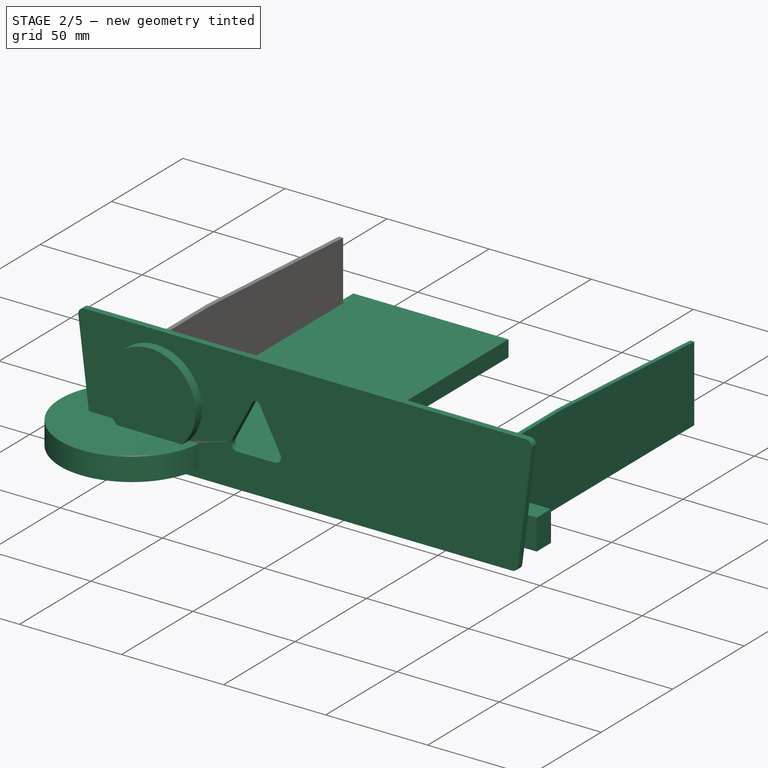
[diagram: stage 2 of 5 — iso view after this stage's code; geometry added in this stage tinted green]
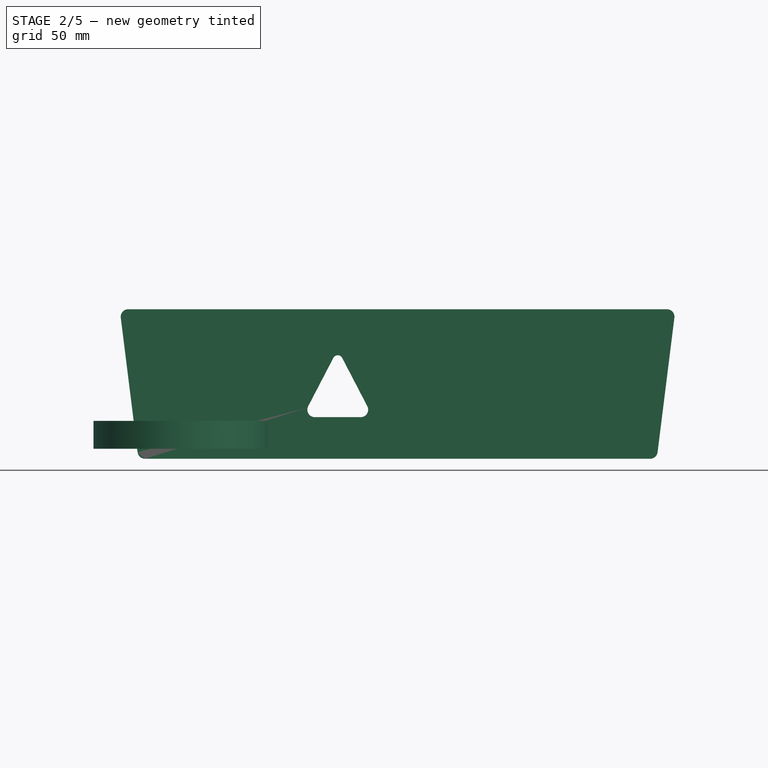
[diagram: stage 2 of 5 — front view after this stage's code; geometry added in this stage tinted green]
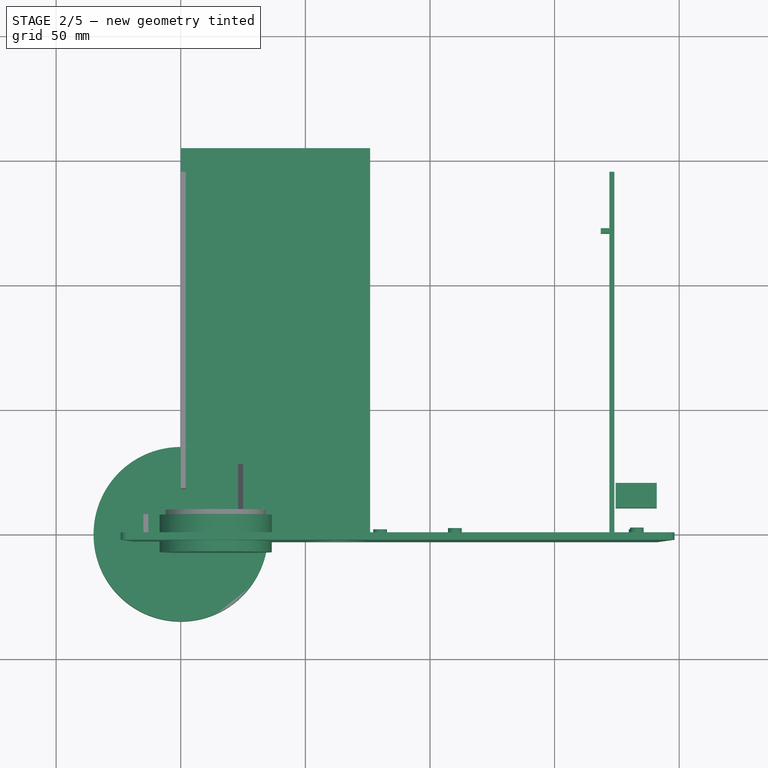
[diagram: stage 2 of 5 — top view after this stage's code; geometry added in this stage tinted green]
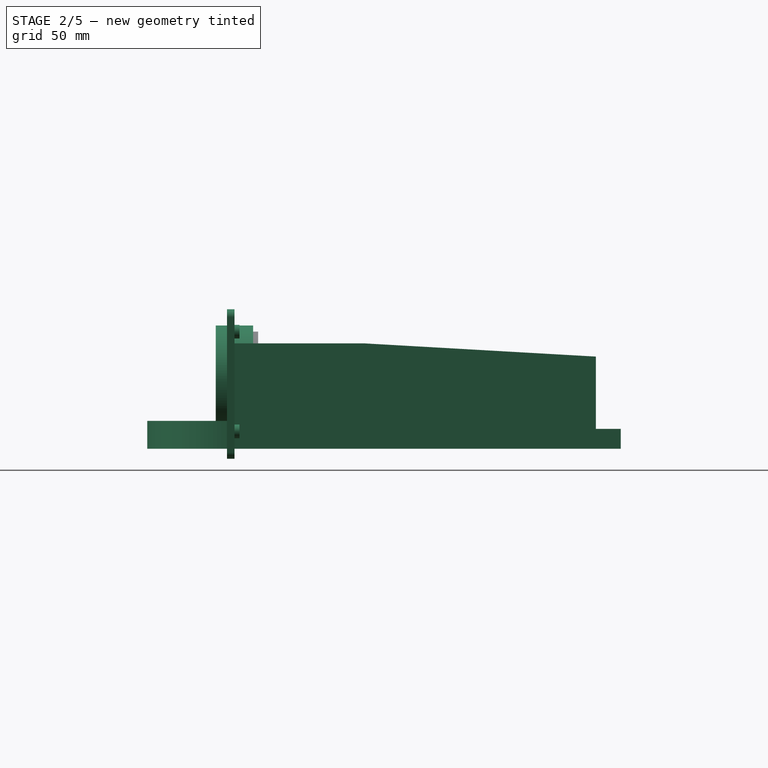
[diagram: stage 2 of 5 — right view after this stage's code; geometry added in this stage tinted green]
FEATURE [Part::Cylinder] Cylinder002  label="UsbSleeve"
  Angle = 360
  AttacherType = Attacher::AttachEngine3D
  Height = 11
  Placement = pos=(29.83,6.075,2.2) rot=(0,1,0;1.5708rad)
  Radius = 4.25
  expr: Placement.Base.z = UsbJack.Placement.Base.z + UsbJack.Height / 2
  expr: Placement.Base.y = UsbJack.Placement.Base.y + UsbJack.Width / 2
  expr: Placement.Base.x = UsbBodyFrontCube.Placement.Base.x + UsbBodyFrontCube.Length + 10mm
FEATURE [PartDesign::Body] Body004  label="Cable"
  Group = -> [Sketch006,Sketch007,AdditivePipe]
  Origin = -> Origin004
  Placement = pos=(11.75,-33.5,26.5) rot=(0,0,1;1.5708rad)
  Tip = -> AdditivePipe
  expr: Placement.Base.z = Sleeve.Placement.Base.z
  expr: Placement.Base.y = Sleeve.Placement.Base.y - Sleeve.Height
  expr: Placement.Base.x = Sleeve.Placement.Base.x
FEATURE [App::DocumentObjectGroup] Group  label="UsbHubPowerPlug"
  Group = -> [Cylinder,Body003,Cylinder001,Body004]
FEATURE [Sketcher::SketchObject] Sketch013
  MapMode = 5
  Placement = pos=(0,0,0) rot=(0.57735,0.57735,0.57735;2.0944rad)
  Support = -> [YZ_Plane007]
  expr: Constraints[0] = Spreadsheet.usb_cable_diameter / 2
  sketch-geometry (1):
    g0: Circle CenterX=0 CenterY=0 CenterZ=0 NormalX=0 NormalY=0 NormalZ=1 AngleXU=0 Radius=1.75
  constraints (3):
    c: Radius(g0) = 1.75
    c: DistanceX(g0) = 0
    c: DistanceY(g0) = 0
FEATURE [Sketcher::SketchObject] Sketch015
  MapMode = 5
  Support = -> [XY_Plane007]
  expr: Constraints[22] = Sketch013.Placement.Base.x
  sketch-geometry (15):
    g0-g7: Circle [constr] x8 (B-spline internal-alignment scaffolding for g8; pole/knot coordinates omitted)
    g8: BSplineCurve PolesCount=8 KnotsCount=6 Degree=3 IsPeriodic=0
    g9-g14: GeomPoint [constr] x6 (B-spline internal-alignment scaffolding for g8; pole/knot coordinates omitted)
  constraints (7):
    c: Radius(g0) = 1
    c: Equal(g0, g1-g7) x7
    c: InternalAlignment(g0-g7 -> g8) x8
    c: InternalAlignment(g9-g14 -> g8) x6
    c: DistanceX(g8) = 0
    c: DistanceY(g8) = 0
    c: DistanceX(g8,g5) = 10
FEATURE [Part::FeaturePython] Facebinder001  # WARN: FeaturePython — macro-defined, semantics opaque (R4)
  Extrusion = 0
  Faces = -> [Cylinder002]
  RemoveSplitter = false
  Sew = false
FEATURE [PartDesign::AdditivePipe] AdditivePipe001
  AuxilleryCurvelinear = true
  AuxillerySpineTangent = false
  Binormal = (0,0,0)
  Mode = 0
  Placement = pos=(0,0,0) rot=(0.57735,0.57735,0.57735;2.0944rad)
  Profile = -> Sketch013
  Spine = -> Sketch015 [Edge1]
  SpineTangent = false
  Transformation = 0
  Transition = 1
FEATURE [Part::FeaturePython] Facebinder  # WARN: FeaturePython — macro-defined, semantics opaque (R4)
  Extrusion = 0
  Faces = -> [Fillet]
  RemoveSplitter = false
  Sew = false
FEATURE [Part::Loft] Loft  label="UsbBodyBack"
  Closed = false
  MaxDegree = 5
  Ruled = true
  Sections = -> [Facebinder,Facebinder001]
  Solid = false
FEATURE [App::DocumentObjectGroup] Group001  label="UsbCableGroup"
  Group = -> [Box001,Cylinder002,Body006,Loft,Fillet]
FEATURE [Part::Compound] Compound  label="UsbCable"
  Links = -> [Box001,Body006,Fillet,Cylinder002,Loft]
FEATURE [Part::FeaturePython] Array  # Draft array (typed FeaturePython)
  Angle = 360
  ArrayType = 0
  Axis = (0,0,1)
  Base = -> Compound
  Center = (0,0,0)
  Fuse = false
  IntervalAxis = (0,0,0)
  IntervalX = (1,0,0)
  IntervalY = (0,20,0)
  IntervalZ = (0,0,1)
  NumberPolar = 1
  NumberX = 1
  NumberY = 4
  NumberZ = 1
  Placement = pos=(22.5,23.5,3.5) rot=(0,0,1;0rad)
  expr: Placement.Base.z = UsbHubBody.Placement.Base.z + 3.5mm
  expr: Placement.Base.y = UsbHubBody.Placement.Base.y + 23.5mm
  expr: Placement.Base.x = UsbHubBody.Placement.Base.x + Spreadsheet.usbhub_thickness * 1mm
  expr: IntervalY.y = Spreadsheet.usbhub_plug_hoffset
FEATURE [Part::Box] Box003  label="FlasherPlug"
  AttacherType = Attacher::AttachEngine3D
  Height = 13
  Length = 40
  Placement = pos=(0,72.5,4.6) rot=(0,0,1;0rad)
  Width = 7
  expr: Placement.Base.z = FlasherBody.Placement.Base.z + FlasherBody.Height / 2 - Height / 2
  expr: Placement.Base.y = FlasherBody.Placement.Base.y + FlasherBody.Width + Pad005.Length
  expr: Placement.Base.x = FlasherBody.Placement.Base.x
FEATURE [Sketcher::SketchObject] Sketch016
  MapMode = 5
  Placement = pos=(0,0,0) rot=(1,0,0;1.5708rad)
  Support = -> [XZ_Plane008]
  sketch-geometry (20):
    g0: LineSegment StartX=1 StartY=17 StartZ=0 EndX=1 EndY=5.5 EndZ=0
    g1: LineSegment StartX=1 StartY=17 StartZ=0 EndX=5 EndY=17 EndZ=0
    g2: LineSegment StartX=5 StartY=19.5 StartZ=0 EndX=5 EndY=17 EndZ=0
    g3: LineSegment StartX=35 StartY=19.5 StartZ=0 EndX=35 EndY=17 EndZ=0
    g4: LineSegment StartX=35 StartY=17 StartZ=0 EndX=39 EndY=17 EndZ=0
    g5: LineSegment StartX=39 StartY=17 StartZ=0 EndX=39 EndY=5.5 EndZ=0
    g6: LineSegment StartX=1 StartY=5.5 StartZ=0 EndX=5 EndY=5.5 EndZ=0
    g7: LineSegment StartX=35 StartY=5.5 StartZ=0 EndX=39 EndY=5.5 EndZ=0
    g8: LineSegment StartX=5 StartY=5.5 StartZ=0 EndX=5 EndY=3 EndZ=0
    g9: LineSegment StartX=35 StartY=5.5 StartZ=0 EndX=35 EndY=3 EndZ=0
    g10: LineSegment StartX=5 StartY=19.5 StartZ=0 EndX=7 EndY=19.5 EndZ=0
    g11: LineSegment StartX=7 StartY=21.5 StartZ=0 EndX=7 EndY=19.5 EndZ=0
    g12: LineSegment StartX=7 StartY=21.5 StartZ=0 EndX=13.5 EndY=21.5 EndZ=0
    g13: LineSegment StartX=26.5 StartY=21.5 StartZ=0 EndX=33 EndY=21.5 EndZ=0
    g14: LineSegment StartX=33 StartY=21.5 StartZ=0 EndX=33 EndY=19.5 EndZ=0
    g15: LineSegment StartX=33 StartY=19.5 StartZ=0 EndX=35 EndY=19.5 EndZ=0
    g16: LineSegment StartX=13.5 StartY=21.5 StartZ=0 EndX=13.5 EndY=19.5 EndZ=0
    g17: LineSegment StartX=26.5 StartY=21.5 StartZ=0 EndX=26.5 EndY=19.5 EndZ=0
    g18: LineSegment StartX=13.5 StartY=19.5 StartZ=0 EndX=26.5 EndY=19.5 EndZ=0
    g19: LineSegment StartX=5 StartY=3 StartZ=0 EndX=35 EndY=3 EndZ=0
  constraints (60):
    c: Vertical(g0)
    c: Distance(g0) = 11.5
    c: Horizontal(g1)
    c: Distance(g1) = 4
    c: Coincident(g0,g1)
    c: Vertical(g2)
    c: Distance(g2) = 2.5
    c: Coincident(g1,g2)
    c: Vertical(g3)
    c: Equal(g3,g2)
    c: Horizontal(g4)
    c: Equal(g4,g1)
    c: Coincident(g3,g4)
    c: Vertical(g5)
    c: Equal(g5,g0)
    c: Coincident(g4,g5)
    c: Horizontal(g6)
    c: Horizontal(g7)
    c: Vertical(g8)
    c: Equal(g6,g1)
    c: Coincident(g0,g6)
    c: Equal(g7,g4)
    c: Coincident(g5,g7)
    c: Distance(g8) = 2.5
    c: Coincident(g6,g8)
    c: Equal(g9,g8)
    c: Coincident(g7,g9)
    c: Vertical(g9)
    c: DistanceX(g-1,g0) = 1
    c: Horizontal(g10)
    c: Distance(g10) = 2
    c: Coincident(g10,g2)
    c: Vertical(g11)
    c: Distance(g11) = 2
    c: Coincident(g11,g10)
    c: Horizontal(g12)
    c: Distance(g12) = 6.5
    c: Coincident(g12,g11)
    c: Horizontal(g13)
    c: Equal(g13,g12)
    c: Vertical(g14)
    c: Equal(g14,g11)
    c: Coincident(g13,g14)
    c: Horizontal(g15)
    c: Equal(g15,g10)
    c: Coincident(g15,g14)
    c: Vertical(g16)
    c: Equal(g16,g11)
    c: Coincident(g16,g12)
    c: Vertical(g17)
    c: Equal(g17,g16)
    c: Coincident(g17,g13)
    c: Coincident(g15,g3)
    c: Coincident(g18,g16)
    c: Coincident(g18,g17)
    c: Horizontal(g18)
    c: Coincident(g8,g19)
    c: Coincident(g9,g19)
    c: Distance(g19) = 30
    c: DistanceY(g-1,g8) = 3
FEATURE [PartDesign::Pad] Pad005
  Length = 16
  Length2 = 100
  Placement = pos=(0,0,0) rot=(1,0,0;1.5708rad)
  Profile = -> Sketch016
  Reversed = true
  Type = 0
FEATURE [PartDesign::Body] Body007  label="FlasherSocket"
  Group = -> [Sketch016,Pad005]
  Origin = -> Origin008
  Placement = pos=(0,56.5,0) rot=(0,0,1;0rad)
  Tip = -> Pad005
  expr: Placement.Base.y = FlasherBody.Placement.Base.y + FlasherBody.Width
FEATURE [Part::Box] Box004  label="FlasherBody"
  AttacherType = Attacher::AttachEngine3D
  Height = 22.2
  Length = 40
  Width = 56.5
FEATURE [Part::Box] Box005  label="FlasherRing"
  AttacherType = Attacher::AttachEngine3D
  Height = 25
  Length = 43
  Placement = pos=(-1.5,-1.5,-1.4) rot=(0,0,1;0rad)
  Width = 1.5
  expr: Placement.Base.z = FlasherBody.Placement.Base.z + FlasherBody.Height / 2 - Height / 2
  expr: Placement.Base.y = FlasherBody.Placement.Base.y - Width
  expr: Placement.Base.x = FlasherBody.Placement.Base.x + FlasherBody.Length / 2 - Length / 2
FEATURE [Part::Fillet] Fillet001
  Base = -> Box005
  Edges = 4 edges r=2: [Edge2,Edge4,Edge6,Edge8]
FEATURE [Part::Fillet] Fillet002
  Base = -> Box004
  Edges = 4 edges r=1: [Edge2,Edge4,Edge6,Edge8]
FEATURE [Part::Box] Box006  label="FlasherRingNotch"
  AttacherType = Attacher::AttachEngine3D
  Height = 2
  Length = 3.3
  Placement = pos=(7.5,-3,-1.4) rot=(0,0,1;0rad)
  Width = 1.5
  expr: Placement.Base.z = FlasherRing.Placement.Base.z
  expr: Placement.Base.x = FlasherRing.Placement.Base.x + 9 * 1mm
  expr: Placement.Base.y = FlasherRing.Placement.Base.y - Width
FEATURE [Part::FeaturePython] Array001  # Draft array (typed FeaturePython)
  Angle = 360
  ArrayType = 0
  Axis = (0,0,1)
  Base = -> Box006
  Center = (0,0,0)
  Fuse = false
  IntervalAxis = (0,0,0)
  IntervalX = (20.5,0,0)
  IntervalY = (0,1,0)
  IntervalZ = (0,0,23)
  NumberPolar = 1
  NumberX = 2
  NumberY = 1
  NumberZ = 2
  expr: IntervalZ.z = FlasherRing.Height - FlasherRingNotch.Height
  expr: IntervalX.x = FlasherRingNotch.Length + 17.2 * 1mm
FEATURE [Sketcher::SketchObject] Sketch017
  MapMode = 5
  Placement = pos=(0,0,0) rot=(1,0,0;1.5708rad)
  Support = -> [XZ_Plane009]
  sketch-geometry (18):
    g0: LineSegment StartX=0 StartY=16.5 StartZ=0 EndX=0 EndY=4.5 EndZ=0
    g1: LineSegment StartX=40 StartY=16.5 StartZ=0 EndX=40 EndY=4.5 EndZ=0
    g2: LineSegment StartX=0 StartY=16.5 StartZ=0 EndX=1 EndY=16.5 EndZ=0
    g3: LineSegment StartX=39 StartY=16.5 StartZ=0 EndX=40 EndY=16.5 EndZ=0
    g4: LineSegment [constr] StartX=22.7723 StartY=21 StartZ=0 EndX=22.7723 EndY=0 EndZ=0
    g5: LineSegment [constr] StartX=0 StartY=9.8673 StartZ=0 EndX=40 EndY=9.8673 EndZ=0
    g6: LineSegment StartX=0 StartY=4.5 StartZ=0 EndX=1 EndY=4.5 EndZ=0
    g7: LineSegment StartX=40 StartY=4.5 StartZ=0 EndX=39 EndY=4.5 EndZ=0
    g8: LineSegment StartX=4.5 StartY=21 StartZ=0 EndX=35.5 EndY=21 EndZ=0
    g9: LineSegment StartX=4.5 StartY=0 StartZ=0 EndX=35.5 EndY=0 EndZ=0
    g10: LineSegment StartX=1 StartY=16.5 StartZ=0 EndX=1 EndY=17.5 EndZ=0
    g11: LineSegment StartX=1 StartY=4.5 StartZ=0 EndX=1 EndY=3.5 EndZ=0
    g12: LineSegment StartX=39 StartY=4.5 StartZ=0 EndX=39 EndY=3.5 EndZ=0
    g13: LineSegment StartX=39 StartY=16.5 StartZ=0 EndX=39 EndY=17.5 EndZ=0
    g14: ArcOfCircle CenterX=4.5 CenterY=17.5 CenterZ=0 NormalX=0 NormalY=0 NormalZ=1 AngleXU=0 Radius=3.5 StartAngle=1.5708 EndAngle=3.14159
    g15: ArcOfCircle CenterX=35.5 CenterY=17.5 CenterZ=0 NormalX=0 NormalY=0 NormalZ=1 AngleXU=0 Radius=3.5 StartAngle=1e-16 EndAngle=1.5708
    g16: ArcOfCircle CenterX=4.5 CenterY=3.5 CenterZ=0 NormalX=0 NormalY=0 NormalZ=1 AngleXU=0 Radius=3.5 StartAngle=3.14159 EndAngle=4.71239
    g17: ArcOfCircle CenterX=35.5 CenterY=3.5 CenterZ=0 NormalX=0 NormalY=0 NormalZ=1 AngleXU=0 Radius=3.5 StartAngle=4.71239 EndAngle=6.28319
  constraints (58):
    c: Vertical(g0)
    c: Distance(g0) = 12
    c: Vertical(g1)
    c: Equal(g1,g0)
    c: Horizontal(g2)
    c: Distance(g2) = 1
    c: Coincident(g2,g0)
    c: Horizontal(g3)
    c: Equal(g2,g3)
    c: Coincident(g3,g1)
    c: Vertical(g4)
    c: Distance(g4) = 21
    c: Horizontal(g5)
    c: Distance(g5) = 40
    c: Horizontal(g6)
    c: Horizontal(g7)
    c: Equal(g6,g2)
    c: Equal(g7,g3)
    c: Coincident(g0,g6)
    c: Coincident(g7,g1)
    c: Horizontal(g8)
    c: Horizontal(g9)
    c: Equal(g8,g9)
    c: PointOnObject(g4,g8)
    c: PointOnObject(g4,g9)
    c: PointOnObject(g5,g0)
    c: PointOnObject(g5,g1)
    c: DistanceY(g9,g-1) = 0
    c: DistanceX(g-1,g0) = 0
    c: Vertical(g10)
    c: Vertical(g11)
    c: Vertical(g12)
    c: Vertical(g13)
    c: Distance(g10) = 1
    c: Equal(g10,g11)
    c: Equal(g11,g12)
    c: Equal(g12,g13)
    c: Coincident(g10,g2)
    c: Coincident(g11,g6)
    c: Coincident(g13,g3)
    c: Coincident(g12,g7)
    c: Coincident(g14,g10)
    c: Coincident(g14,g8)
    c: DistanceX(g14,g8) = 0
    c: DistanceY(g14,g10) = 0
    c: Coincident(g15,g8)
    c: Coincident(g15,g13)
    c: DistanceX(g8,g15) = 0
    c: DistanceY(g15,g13) = 0
    c: DistanceY(g16,g11) = 0
    c: DistanceX(g16,g9) = 0
    c: Coincident(g16,g11)
    c: Coincident(g9,g16)
    c: DistanceY(g17,g12) = 0
    c: DistanceX(g9,g17) = 0
    c: Coincident(g12,g17)
    c: Coincident(g17,g9)
    c: DistanceY(g7,g6) = 0
FEATURE [PartDesign::Pad] Pad006
  Length = 5.5
  Length2 = 100
  Placement = pos=(0,0,0) rot=(1,0,0;1.5708rad)
  Profile = -> Sketch017
  Reversed = true
  Type = 0
FEATURE [PartDesign::Body] Body008  label="FlasherNeck"
  Group = -> [Sketch017,Pad006]
  Origin = -> Origin009
  Placement = pos=(0,-7,0.6) rot=(0,0,1;0rad)
  Tip = -> Pad006
  expr: Placement.Base.z = FlasherRing.Placement.Base.z + FlasherRingNotch.Height
  expr: Placement.Base.y = FlasherRing.Placement.Base.y - Pad006.Length
  expr: Placement.Base.x = FlasherBody.Placement.Base.x
FEATURE [Part::Box] Box007  label="FlasherButtonRect"
  AttacherType = Attacher::AttachEngine3D
  Height = 15.7
  Length = 32.25
  Placement = pos=(3.875,-15.5,3.25) rot=(0,0,1;0rad)
  Width = 8.5
  expr: Placement.Base.z = FlasherBody.Placement.Base.z + FlasherBody.Height / 2 - Height / 2
  expr: Placement.Base.y = FlasherNeck.Placement.Base.y - Width
  expr: Placement.Base.x = FlasherBody.Placement.Base.x + FlasherBody.Length / 2 - Length / 2
FEATURE [Sketcher::SketchObject] Sketch018
  MapMode = 5
  Placement = pos=(0,0,0) rot=(1,0,0;1.5708rad)
  Support = -> [XZ_Plane010]
  sketch-geometry (4):
    g0: LineSegment StartX=0 StartY=0 StartZ=0 EndX=-12.5 EndY=-24 EndZ=0
    g1: LineSegment StartX=-12.5 StartY=-24 StartZ=0 EndX=12.5 EndY=-24 EndZ=0
    g2: LineSegment StartX=12.5 StartY=-24 StartZ=0 EndX=0 EndY=0 EndZ=0
    g3: LineSegment [constr] StartX=0 StartY=0 StartZ=0 EndX=0 EndY=-24 EndZ=0
  constraints (12):
    c: Coincident(g1,g0)
    c: Horizontal(g1)
    c: Coincident(g2,g1)
    c: Coincident(g2,g0)
    c: Equal(g2,g0)
    c: Distance(g1) = 25
    c: Coincident(g3,g0)
    c: Vertical(g3)
    c: PointOnObject(g3,g1)
    c: Distance(g3) = 24
    c: DistanceX(g3) = 0
    c: DistanceY(g0) = 0
FEATURE [PartDesign::Pad] Pad007
  Length = 16
  Length2 = 100
  Placement = pos=(0,0,0) rot=(1,0,0;1.5708rad)
  Profile = -> Sketch018
  Reversed = true
  Type = 0
FEATURE [PartDesign::Body] Body009  label="FlasherButtonTr"
  Group = -> [Sketch018,Pad007]
  Origin = -> Origin010
  Placement = pos=(20,-23,23.6) rot=(0,0,1;0rad)
  Tip = -> Pad007
  expr: Placement.Base.z = FlasherRing.Placement.Base.z + FlasherRing.Height
  expr: Placement.Base.y = FlasherNeck.Placement.Base.y - Pad007.Length
  expr: Placement.Base.x = FlasherButtonRect.Placement.Base.x + FlasherButtonRect.Length / 2
FEATURE [Part::Fillet] Fillet003
  Base = -> Body009
  Edges = 6 edges: [Edge1 r=1,Edge2 r=2,Edge3 r=1,Edge5 r=2,Edge6 r=1,Edge8 r=1]
FEATURE [Sketcher::SketchObject] Sketch019
  MapMode = 5
  Support = -> [XY_Plane011]
  sketch-geometry (18):
    g0: LineSegment StartX=20 StartY=0 StartZ=0 EndX=26 EndY=18.2919 EndZ=0
    g1: LineSegment StartX=26 StartY=18.2919 StartZ=0 EndX=24.5 EndY=22 EndZ=0
    g2: LineSegment StartX=25 StartY=22 StartZ=0 EndX=26.5 EndY=18.2919 EndZ=0
    g3: LineSegment StartX=26.5 StartY=18.2919 StartZ=0 EndX=20.5 EndY=0 EndZ=0
    g4: LineSegment StartX=25 StartY=22 StartZ=0 EndX=24.5 EndY=22 EndZ=0
    g5: LineSegment [constr] StartX=20 StartY=22 StartZ=0 EndX=20 EndY=0 EndZ=0
    g6: LineSegment [constr] StartX=20 StartY=18.2919 StartZ=0 EndX=26 EndY=18.2919 EndZ=0
    g7: LineSegment StartX=-20 StartY=0 StartZ=0 EndX=-26 EndY=18.2919 EndZ=0
    g8: LineSegment StartX=-26 StartY=18.2919 StartZ=0 EndX=-24.5 EndY=22 EndZ=0
    g9: LineSegment StartX=-25 StartY=22 StartZ=0 EndX=-26.5 EndY=18.2919 EndZ=0
    g10: LineSegment StartX=-26.5 StartY=18.2919 StartZ=0 EndX=-20.5 EndY=0 EndZ=0
    g11: LineSegment StartX=-25 StartY=22 StartZ=0 EndX=-24.5 EndY=22 EndZ=0
    g12: LineSegment [constr] StartX=-20 StartY=22 StartZ=0 EndX=-20 EndY=0 EndZ=0
    g13: LineSegment [constr] StartX=-20 StartY=18.2919 StartZ=0 EndX=-26 EndY=18.2919 EndZ=0
    g14: LineSegment StartX=-20 StartY=0 StartZ=0 EndX=20 EndY=0 EndZ=0
    g15: LineSegment StartX=-20.5 StartY=-0.5 StartZ=0 EndX=20.5 EndY=-0.5 EndZ=0
    g16: LineSegment StartX=-20.5 StartY=-0.5 StartZ=0 EndX=-20.5 EndY=0 EndZ=0
    g17: LineSegment StartX=20.5 StartY=-0.5 StartZ=0 EndX=20.5 EndY=0 EndZ=0
  constraints (53):
    c: Coincident(g1,g0)
    c: Distance(g1) = 4
    c: Equal(g2,g1)
    c: Parallel(g2,g1)
    c: Equal(g3,g0)
    c: Parallel(g3,g0)
    c: Coincident(g3,g2)
    c: DistanceX(g0,g3) = 0.5
    c: Coincident(g4,g2)
    c: Coincident(g4,g1)
    c: Vertical(g5)
    c: Distance(g5) = 22
    c: DistanceY(g1,g5) = 0
    c: DistanceX(g5,g1) = 4.5
    c: Horizontal(g6)
    c: Distance(g6) = 6
    c: PointOnObject(g6,g5)
    c: Coincident(g6,g0)
    c: Coincident(g0,g5)
    c: PointOnObject(g0,g-1)
    c: Coincident(g8,g7)
    c: Distance(g8) = 4
    c: Equal(g9,g8)
    c: Parallel(g9,g8)
    c: Parallel(g10,g7)
    c: Coincident(g10,g9)
    c: Coincident(g11,g9)
    c: Coincident(g11,g8)
    c: Vertical(g12)
    c: Distance(g12) = 22
    c: Horizontal(g13)
    c: Distance(g13) = 6
    c: PointOnObject(g13,g12)
    c: Coincident(g13,g7)
    c: Coincident(g7,g12)
    c: DistanceY(g12,g8) = 0
    c: DistanceX(g8,g12) = 4.5
    c: DistanceX(g-2,g6) = 20
    c: Symmetric(g6,g13,g-2)
    c: DistanceX(g10,g7) = 0.5
    c: Coincident(g14,g7)
    c: Coincident(g14,g0)
    c: Horizontal(g11)
    c: Distance(g11) = 0.5
    c: Coincident(g16,g15)
    c: Coincident(g17,g15)
    c: Vertical(g17)
    c: Distance(g16) = 0.5
    c: Vertical(g16)
    c: Equal(g17,g16)
    c: Coincident(g16,g10)
    c: Coincident(g17,g3)
    c: Horizontal(g15)
FEATURE [PartDesign::Pad] Pad008
  Length = 6.5
  Length2 = 100
  Profile = -> Sketch019
  Type = 0
FEATURE [PartDesign::Body] Body010  label="FlasherEar"
  Group = -> [Sketch019,Pad008]
  Origin = -> Origin011
  Placement = pos=(20,23,7.85) rot=(0,0,1;3.14159rad)
  Tip = -> Pad008
  expr: Placement.Base.z = FlasherBody.Placement.Base.z + FlasherBody.Height / 2 - Pad008.Length / 2
  expr: Placement.Base.x = FlasherBody.Placement.Base.x + FlasherBody.Length / 2
  expr: Placement.Base.y = FlasherBody.Placement.Base.y + 23mm
FEATURE [App::DocumentObjectGroup] Group002  label="FlasherGroup"
  Group = -> [Box003,Body007,Fillet001,Fillet002,Array001,Body008,Box007,Fillet003,Body010]
FEATURE [Part::Compound] Compound002  label="Flasher"
  Links = -> [Box003,Fillet001,Array001,Fillet003,Fillet002,Body007,Body008,Box007,Body010]
  Placement = pos=(43,19,14) rot=(0,0,1;0rad)
  expr: Placement.Base.y = Face.Placement.Base.y - Pad009.Length + FlasherRing.Width + Pad006.Length + Pad007.Length - 1mm
FEATURE [Part::Cylinder] Cylinder003  label="ChargerABody"
  Angle = 360
  AttacherType = Attacher::AttachEngine3D
  Height = 11.2
  Radius = 35
FEATURE [Part::Box] Box008  label="ChargerUsb"
  AttacherType = Attacher::AttachEngine3D
  Height = 7.2
  Length = 10.5
  Width = 13
FEATURE [Part::Cylinder] Cylinder004  label="ChargeUsbSleeve"
  Angle = 360
  AttacherType = Attacher::AttachEngine3D
  Height = 9
  Placement = pos=(5.25,30,3.6) rot=(1,0,0;1.5708rad)
  Radius = 3.5
  expr: Placement.Base.z = ChargerUsb.Placement.Base.z + ChargerUsb.Height / 2
  expr: Placement.Base.y = ChargerUsb.Placement.Base.y + ChargerUsb.Width + 8mm + Height
  expr: Placement.Base.x = ChargerUsb.Placement.Base.x + ChargerUsb.Length / 2
FEATURE [Part::FeaturePython] Facebinder003  # WARN: FeaturePython — macro-defined, semantics opaque (R4)
  Extrusion = 0
  Faces = -> [Cylinder004]
  RemoveSplitter = false
  Sew = false
FEATURE [Part::Cylinder] Cylinder005  label="UsbCargerCord"
  Angle = 360
  AttacherType = Attacher::AttachEngine3D
  Height = 15
  Placement = pos=(5.25,45,3.6) rot=(1,0,0;1.5708rad)
  Radius = 1.75
  expr: Placement.Base.z = ChargeUsbSleeve.Placement.Base.z
  expr: Placement.Base.y = ChargeUsbSleeve.Placement.Base.y + Height
  expr: Placement.Base.x = ChargeUsbSleeve.Placement.Base.x
FEATURE [Part::Fillet] Fillet005
  Base = -> Box008
  Edges = 8 edges r=1: [Edge1,Edge2,Edge4,Edge5,Edge6,Edge8,Edge9,Edge10]
FEATURE [Part::Box] Box009  label="PhoneBody"
  AttacherType = Attacher::AttachEngine3D
  Height = 8
  Length = 76
  Width = 155
FEATURE [Part::FeaturePython] Clone001  label="Pad010"  # Draft clone (typed FeaturePython)
  AttacherType = Attacher::AttachEngine3D
  Fuse = false
  Objects = -> [Pad007]
  Placement = pos=(0,0,0) rot=(1,0,0;1.5708rad)
  Scale = (1,1,1)
FEATURE [Part::Fillet] Fillet009
  Base = -> Clone001
  Edges = 3 edges: [Edge1 r=1,Edge2 r=2,Edge5 r=2]
FEATURE [Part::Offset] Offset001
  Fill = false
  Intersection = false
  Join = 0
  Mode = 0
  Placement = pos=(63,-12.5,37.7) rot=(0,0,1;0rad)
  SelfIntersection = false
  Source = -> Fillet009
  Value = 1
  expr: Placement.Base.z = Flasher.Placement.Base.z + FlasherBody.Height + 1.5mm
  expr: Placement.Base.y = Flasher.Placement.Base.y - FlasherRing.Width - FlasherButtonRect.Width - Pad006.Length - Pad007.Length
  expr: Placement.Base.x = Flasher.Placement.Base.x + FlasherBody.Length / 2
FEATURE [Part::Cut] Cut
  Base = -> Fillet008
  Tool = -> Offset001
FEATURE [Part::Cylinder] Cylinder007  label="BluetoothHole"
  Angle = 360
  AttacherType = Attacher::AttachEngine3D
  Height = 15
  Placement = pos=(14,7.5,27) rot=(1,0,0;1.5708rad)
  Radius = 22.5
  expr: Placement.Base.z = BluetoothCmp.Placement.Base.z
  expr: Placement.Base.y = Face.Placement.Base.y + Height / 2
  expr: Placement.Base.x = BluetoothCmp.Placement.Base.x
FEATURE [PartDesign::Body] Body  label="SideLeft"
  Group = -> [Sketch,Pad]
  Origin = -> Origin
  Tip = -> Pad
FEATURE [Part::Mirroring] Part__Mirroring  label="SideRight"
  Base = (87,0,0)
  Normal = (1,0,0)
  Source = -> Body
  expr: Base.x = BottomBack.Placement.Base.x + BottomBack.Length / 2
FEATURE [Part::Compound] Compound001  label="UsbHub"
  Links = -> [Cylinder,Body004,Body003,Cylinder001,Body002,Array,Array002,Cylinder011,Clone004]
  Placement = pos=(62,143,3) rot=(0,0,-1;1.5708rad)
FEATURE [Part::Cylinder] Cylinder014  label="FaceAnchorBody"
  Angle = 360
  AttacherType = Attacher::AttachEngine3D
  Height = 2
  Radius = 2.75
  expr: Height = Front.Width
FEATURE [Part::Cylinder] Cylinder015  label="FaceAnchorScrewHole"
  Angle = 360
  AttacherType = Attacher::AttachEngine3D
  Height = 2
  Radius = 0.9
  expr: Placement.Rotation.Axis.z = FaceAnchorBody001.Placement.Rotation.Axis.z
  expr: Placement.Rotation.Axis.y = FaceAnchorBody001.Placement.Rotation.Axis.y
  expr: Placement.Rotation.Axis.x = FaceAnchorBody001.Placement.Rotation.Axis.x
  expr: Placement.Rotation.Angle = FaceAnchorBody001.Placement.Rotation.Angle
  expr: Height = FaceAnchorBody001.Height
FEATURE [Part::Cut] Cut015  label="FaceAnchor"
  Base = -> Cylinder014
  Tool = -> Cylinder015
FEATURE [Part::FeaturePython] Clone015  label="FaceAnchor001"  # Draft clone (typed FeaturePython)
  AttacherType = Attacher::AttachEngine3D
  Fuse = false
  Objects = -> [Cut015]
  Placement = pos=(-8.5,2,7) rot=(1,0,0;1.5708rad)
  Scale = (1,1,1)
  expr: Placement.Base.z = Front.Placement.Base.z + 7mm
  expr: Placement.Base.x = (Front.Placement.Base.x - BottomBack.Placement.Base.x) / 2 - 1mm
  expr: Placement.Base.y = Face.Placement.Base.y + Front.Width
FEATURE [Part::Mirroring] Part__Mirroring021  label="FaceAnchor001 (Mirror #22)"
  Base = (87,0,0)
  Normal = (1,0,0)
  Source = -> Clone015
  expr: Base.x = Front.Placement.Base.x + Front.Length / 2
FEATURE [Part::FeaturePython] Clone016  label="FaceAnchor002"  # Draft clone (typed FeaturePython)
  AttacherType = Attacher::AttachEngine3D
  Fuse = false
  Objects = -> [Cut015]
  Placement = pos=(110,2,35) rot=(1,0,0;1.5708rad)
  Scale = (1,1,1)
  expr: Placement.Base.y = Face.Placement.Base.y + Front.Width
FEATURE [Part::FeaturePython] Clone017  label="FaceAnchor003"  # Draft clone (typed FeaturePython)
  AttacherType = Attacher::AttachEngine3D
  Fuse = false
  Objects = -> [Cut015]
  Placement = pos=(80,2,7) rot=(1,0,0;1.5708rad)
  Scale = (1,1,1)
  expr: Placement.Base.y = Face.Placement.Base.y + Front.Width
FEATURE [Part::FeaturePython] Clone025  label="FaceAnchor004"  # Draft clone (typed FeaturePython)
  AttacherType = Attacher::AttachEngine3D
  Fuse = false
  Objects = -> [Cut015]
  Placement = pos=(-9,2,47) rot=(1,0,0;1.5708rad)
  Scale = (1,1,1)
  expr: Placement.Base.y = Face.Placement.Base.y + Front.Width
FEATURE [Part::Mirroring] Part__Mirroring027  label="FaceAnchor004 (Mirror #28)"
  Base = (87,0,0)
  Normal = (1,0,0)
  Source = -> Clone025
  expr: Base.x = BottomBack.Placement.Base.x + BottomBack.Length / 2
FEATURE [Part::Mirroring] Part__Mirroring029  label="SideBottomBump (Mirror #30)"
  Base = (87,0,0)
  Normal = (1,0,0)
  Source = -> Box044
  expr: Base.x = BottomBack.Placement.Base.x + BottomBack.Length / 2
FEATURE [Part::Box] Box045  label="CableGuard"
  AttacherType = Attacher::AttachEngine3D
  Height = 20
  Length = 3.5
  Placement = pos=(168.5,120.5,10.5) rot=(0,0,1;0rad)
  Width = 2
  expr: Placement.Base.z = 3 * Spreadsheet.usb_cable_diameter
  expr: Placement.Base.y = UsbHub.Placement.Base.y - Spreadsheet.usbhub_thickness * 1mm
  expr: Placement.Base.x = BottomBack.Length - SidePad.Length - Length
  expr: Width = Spreadsheet.thickness
FEATURE [Part::Compound] Compound009  label="SideRight001"
  Links = -> [Part__Mirroring,Box045]
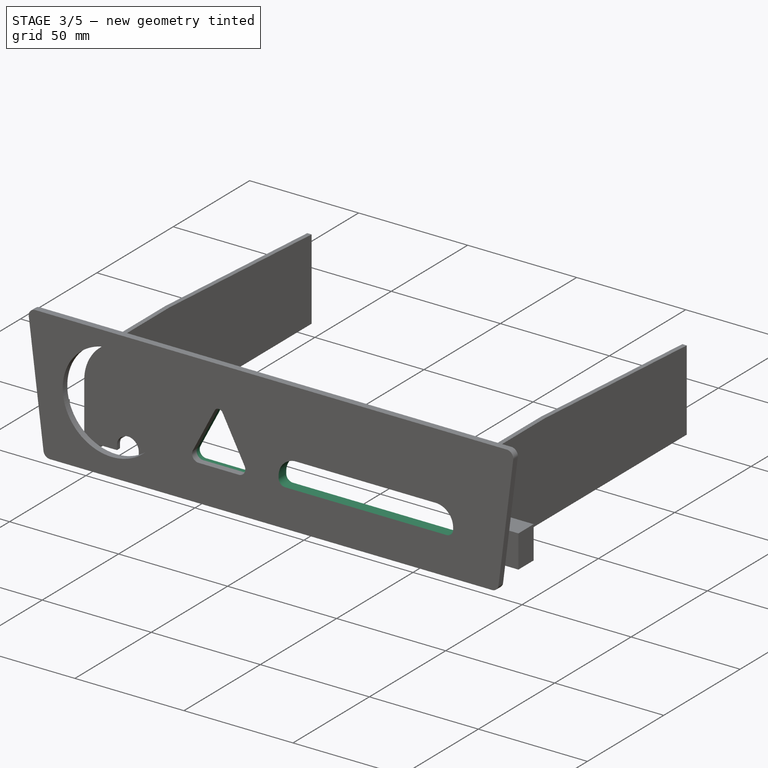
[diagram: stage 3 of 5 — iso view after this stage's code; geometry added in this stage tinted green]
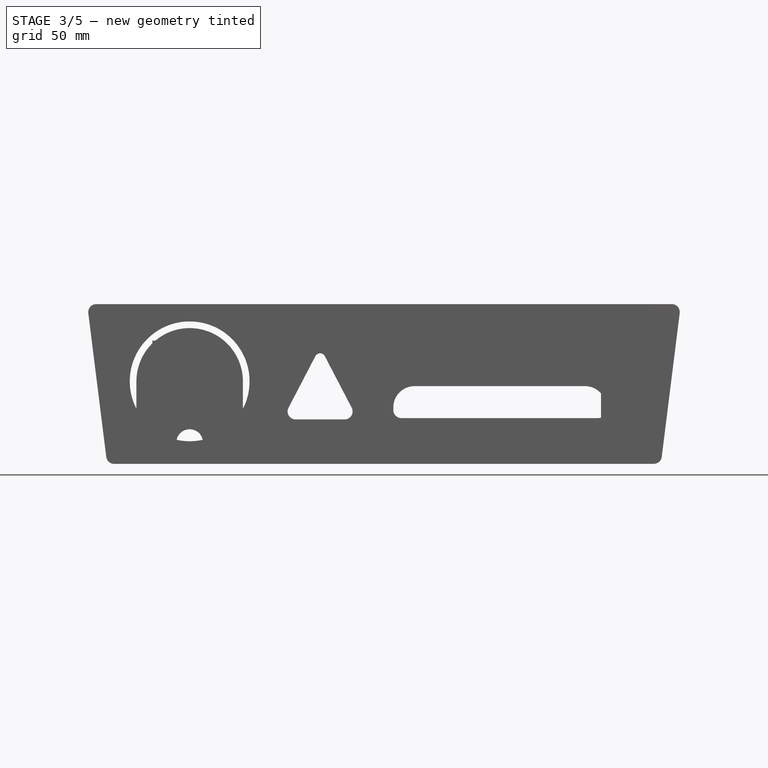
[diagram: stage 3 of 5 — front view after this stage's code; geometry added in this stage tinted green]
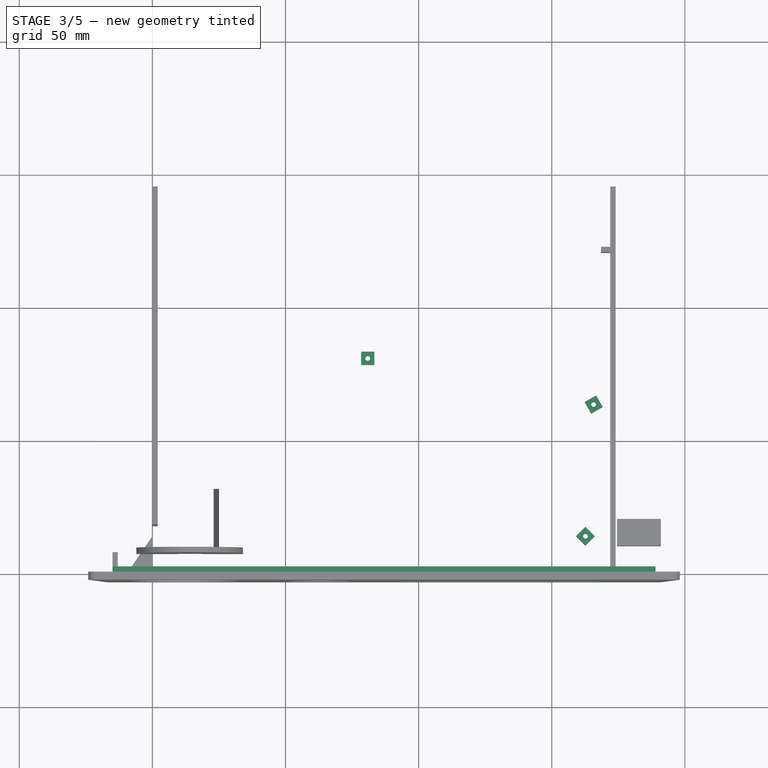
[diagram: stage 3 of 5 — top view after this stage's code; geometry added in this stage tinted green]
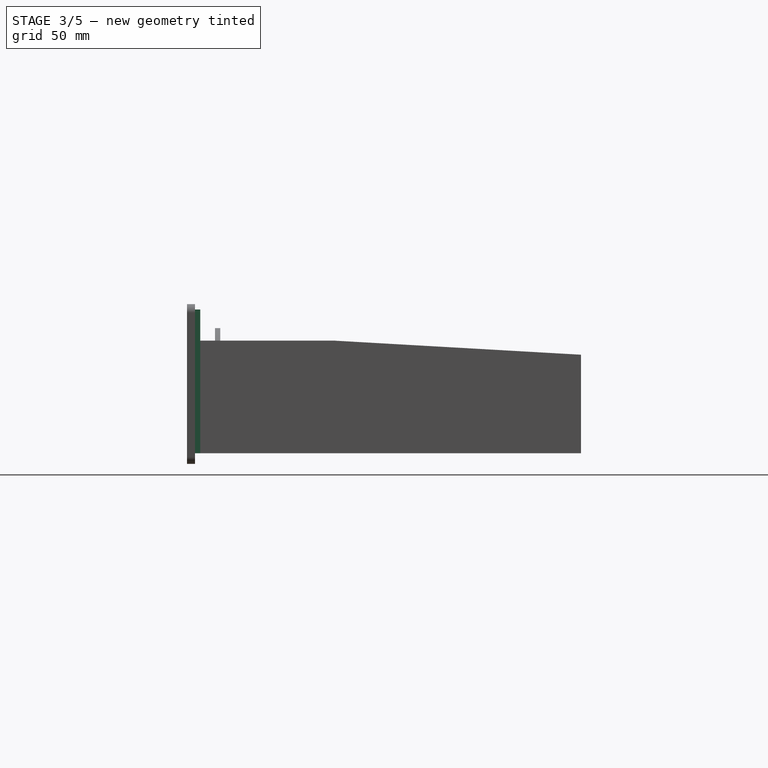
[diagram: stage 3 of 5 — right view after this stage's code; geometry added in this stage tinted green]
FEATURE [Part::Fillet] Fillet004
  Base = -> Cylinder003
  Edges = 1 edges r=2: [Edge1]
FEATURE [Part::FeaturePython] Facebinder002  # WARN: FeaturePython — macro-defined, semantics opaque (R4)
  Extrusion = 0
  Faces = -> [Fillet005]
  RemoveSplitter = false
  Sew = false
FEATURE [Part::Loft] Loft001
  Closed = false
  MaxDegree = 5
  Ruled = true
  Sections = -> [Facebinder002,Facebinder003]
  Solid = false
FEATURE [Part::Compound] Compound003  label="ChargerAUsb"
  Links = -> [Loft001,Fillet005,Cylinder005,Cylinder004]
  Placement = pos=(-35,-5.25,0) rot=(0,0,1;1.5708rad)
  expr: Placement.Base.z = ChargerABody.Placement.Base.z
  expr: Placement.Base.y = ChargerABody.Placement.Base.y - ChargerUsb.Length / 2
  expr: Placement.Base.x = ChargerABody.Placement.Base.x - ChargerABody.Radius
FEATURE [App::DocumentObjectGroup] Group003  label="ChargerAGroup"
  Group = -> [Cylinder004,Cylinder005,Fillet005,Loft001,Fillet004,Compound003]
FEATURE [Part::Compound] Compound004  label="ChargerA"
  Links = -> [Fillet004,Compound003]
  Placement = pos=(130.5,40,2) rot=(0,0,1;0rad)
  expr: Placement.Base.x = BottomBack.Placement.Base.x + BottomBack.Length - SidePad.Length - PhoneBody.Length / 2 - Spreadsheet.phonecradle_hrin_margin * 1mm - 0.5mm
  expr: Placement.Base.y = Front.Placement.Base.y + ChargerABody.Radius + Front.Width + 3mm
  expr: Placement.Base.z = BottomBack.Placement.Base.z + BottomBack.Height
FEATURE [Part::Fillet] Fillet006  label="Phone"
  Base = -> Box009
  Edges = 12 edges: [Edge1 r=5,Edge2 r=6,Edge3 r=5,Edge4 r=2,Edge5 r=5,Edge6 r=6,Edge7 r=5,Edge8 r=2,Edge9 r=2,Edge10 r=2,Edge11 r=2,Edge12 r=2]
  Placement = pos=(92.5,-39.5,14.2) rot=(0,0,1;0rad)
  expr: Placement.Base.z = ChargerA.Placement.Base.z + ChargerABody.Height + 1mm
  expr: Placement.Base.y = ChargerA.Placement.Base.y - PhoneBody.Width / 2 - 2mm
  expr: Placement.Base.x = ChargerA.Placement.Base.x - PhoneBody.Length / 2
FEATURE [Part::MultiCommon] Common
  Shapes = -> [Fillet006,Cut]
FEATURE [Part::Offset] Offset
  Fill = false
  Intersection = false
  Join = 2
  Mode = 0
  Placement = pos=(0,1,1) rot=(0,0,1;0rad)
  SelfIntersection = false
  Source = -> Common
  Value = 2
FEATURE [Part::Cut] Cut001
  Base = -> Cut
  Tool = -> Offset
FEATURE [Part::Cut] Cut002
  Base = -> Cut001
  Tool = -> Cylinder007
FEATURE [Part::Box] Box017  label="Cube003"
  AttacherType = Attacher::AttachEngine3D
  Height = 11.7
  Length = 2
  Placement = pos=(100.575,79.67,2) rot=(0,0,1;0rad)
  Width = 39.83
  expr: Placement.Base.z = BottomBack.Height
  expr: Height = ChargerABody.Height + 0.5mm
  expr: Width = UsbBodyFrontCube.Length + UsbJack.Length + 20mm
  expr: Placement.Base.y = UsbHub.Placement.Base.y - Spreadsheet.usbhub_thickness * 1mm - Width - 1mm
  expr: Placement.Base.x = UsbHub.Placement.Base.x + 22mm + 16.575mm
FEATURE [Part::Box] Box019  label="PhoneCradleBottom"
  AttacherType = Attacher::AttachEngine3D
  Height = 1.5
  Length = 82
  Placement = pos=(89.5,2.17,12.2) rot=(0,0,1;0rad)
  Width = 94
  expr: Length = PhoneBody.Length + 2 * Spreadsheet.phonecradle_hrin_margin * 1mm
  expr: Placement.Base.z = Cube003.Placement.Base.z + Cube003.Height - Height
  expr: Placement.Base.x = ChargerA.Placement.Base.x - Length / 2
  expr: Placement.Base.y = Cube003.Placement.Base.y - Width + UsbSleeve.Height * 1.5
FEATURE [Part::Cylinder] Cylinder010  label="ChargerAHole"
  Angle = 360
  AttacherType = Attacher::AttachEngine3D
  Height = 22.4
  Placement = pos=(130.5,40,2) rot=(0,0,1;0rad)
  Radius = 36
  expr: Placement.Base.y = ChargerA.Placement.Base.y
  expr: Placement.Base.x = ChargerA.Placement.Base.x
  expr: Radius = ChargerABody.Radius + 1mm
  expr: Placement.Base.z = ChargerA.Placement.Base.z
  expr: Height = ChargerABody.Height * 2
FEATURE [Part::Box] Box020  label="Cube006"
  AttacherType = Attacher::AttachEngine3D
  Height = 10.2
  Length = 10
  Placement = pos=(97.9731,7.47309,2) rot=(0,0,1;0.785398rad)
  Width = 2
  expr: Placement.Base.y = ChargerAHole.Placement.Base.y - (ChargerAHole.Radius + Length) * sin(45)
  expr: Placement.Base.x = ChargerAHole.Placement.Base.x - (ChargerAHole.Radius + Length) * cos(Placement.Rotation.Angle)
  expr: Placement.Base.z = BottomBack.Height
  expr: Height = PhoneCradleBottom.Placement.Base.z - BottomBack.Height
FEATURE [Part::FeaturePython] Clone003  label="Cube007"  # Draft clone (typed FeaturePython)
  AttacherType = Attacher::AttachEngine3D
  Fuse = false
  Objects = -> [Box020]
  Placement = pos=(90.6628,63,2) rot=(0,0,-1;0.523599rad)
  Scale = (1,1,1)
  expr: Placement.Base.x = ChargerAHole.Placement.Base.x - (ChargerAHole.Radius + Cube006.Length) * cos(-Placement.Rotation.Angle)
  expr: Placement.Base.y = ChargerAHole.Placement.Base.y - (ChargerAHole.Radius + Cube006.Length) * sin(-30)
  expr: Placement.Base.z = BottomBack.Height
FEATURE [Part::Box] Box028  label="Cube020"
  AttacherType = Attacher::AttachEngine3D
  Height = 36
  Length = 2.5
  Placement = pos=(40.1,7.1,2) rot=(0,0,1;0rad)
  Width = 10
  expr: Placement.Base.y = Flasher.Placement.Base.y + FlasherRing.Placement.Base.y - Width - Spreadsheet.fit_clearance * 1mm
  expr: Placement.Base.x = Flasher.Placement.Base.x - Length - Spreadsheet.fit_clearance * 1mm
  expr: Placement.Base.z = BottomBack.Placement.Base.z + BottomBack.Height
  expr: Height = Flasher.Placement.Base.z + FlasherRing.Placement.Base.z + FlasherRing.Height - BottomBack.Height + Spreadsheet.fit_clearance * 1mm
FEATURE [Part::Box] Box030  label="Cube022"
  AttacherType = Attacher::AttachEngine3D
  Height = 36
  Length = 2.5
  Placement = pos=(40.1,76,2) rot=(0,0,1;0rad)
  Width = 10
  expr: Length = Cube020.Length
  expr: Placement.Base.y = Flasher.Placement.Base.y + FlasherBody.Width + 0.5mm
  expr: Placement.Base.x = Cube020.Placement.Base.x
  expr: Placement.Base.z = BottomBack.Placement.Base.z + BottomBack.Height
  expr: Height = Cube020.Height
FEATURE [Part::Box] Box036  label="Cube028"
  AttacherType = Attacher::AttachEngine3D
  Height = 36
  Length = 2.5
  Placement = pos=(83.4,76,2) rot=(0,0,1;0rad)
  Width = 10
  expr: Height = Cube020.Height
  expr: Placement.Base.z = Cube022.Placement.Base.z + Cube022.Height - Height
  expr: Placement.Base.x = Cube022.Placement.Base.x + 2 * (Flasher.Placement.Base.x + FlasherBody.Length / 2 - Cube022.Placement.Base.x) - Length
  expr: Placement.Base.y = Cube022.Placement.Base.y
  expr: Width = Cube022.Width
  expr: Length = Cube022.Length
FEATURE [Part::Box] Box039  label="AnchorBody"
  AttacherType = Attacher::AttachEngine3D
  Height = 3.5
  Length = 5
  Width = 5
FEATURE [Part::Cylinder] Cylinder012  label="AnchorScrew"
  Angle = 360
  AttacherType = Attacher::AttachEngine3D
  Height = 3.5
  Placement = pos=(2.5,2.5,0) rot=(0,0,1;0rad)
  Radius = 0.9
  expr: Placement.Base.y = AnchorBody.Placement.Base.y + AnchorBody.Width / 2
  expr: Placement.Base.x = AnchorBody.Placement.Base.x + AnchorBody.Length / 2
  expr: Height = AnchorBody.Height
FEATURE [Part::Cut] Cut010  label="Anchor"
  Base = -> Box039
  Tool = -> Cylinder012
FEATURE [Part::FeaturePython] Clone011  label="Anchor006"  # Draft clone (typed FeaturePython)
  AttacherType = Attacher::AttachEngine3D
  Fuse = false
  Objects = -> [Cut010]
  Placement = pos=(98.3266,10.6551,2) rot=(0,0,1;0.785398rad)
  Scale = (1,1,1)
  expr: Placement.Rotation.Angle = Cube006.Placement.Rotation.Angle
  expr: Placement.Base.z = Cube006.Placement.Base.z
  expr: Placement.Base.y = Cube006.Placement.Base.y + (Cube006.Length - AnchorBody.Length) / 2 * sin(Cube006.Placement.Rotation.Angle) + Cube006.Width * sin(Cube006.Placement.Rotation.Angle)
  expr: Placement.Base.x = Cube006.Placement.Base.x + (Cube006.Length - AnchorBody.Length) / 2 * cos(Cube006.Placement.Rotation.Angle) - Cube006.Width * cos(Cube006.Placement.Rotation.Angle)
FEATURE [Part::Mirroring] Part__Mirroring011  label="Anchor006 (Mirror #12)"
  Base = (130.5,0,0)
  Normal = (1,0,0)
  Source = -> Clone011
  expr: Base.x = ChargerAHole.Placement.Base.x
FEATURE [Part::FeaturePython] Clone012  label="Anchor007"  # Draft clone (typed FeaturePython)
  AttacherType = Attacher::AttachEngine3D
  Fuse = false
  Objects = -> [Cut010]
  Placement = pos=(91.8279,62.75,2) rot=(0,0,-1;0.523599rad)
  Scale = (1,1,1)
  expr: Placement.Base.z = Cube007.Placement.Base.z
  expr: Placement.Base.y = Cube007.Placement.Base.y - (Cube006.Length - AnchorBody.Length) / 2 * sin(Cube007.Placement.Rotation.Angle) + Cube006.Width * sin(Cube007.Placement.Rotation.Angle)
  expr: Placement.Base.x = Cube007.Placement.Base.x + (Cube006.Length - AnchorBody.Length) / 2 * cos(Cube007.Placement.Rotation.Angle) - Cube006.Width * cos(90° - Cube007.Placement.Rotation.Angle)
  expr: Placement.Rotation.Angle = Cube007.Placement.Rotation.Angle
FEATURE [Part::Mirroring] Part__Mirroring016  label="Anchor007 (Mirror #17)"
  Base = (130.5,0,0)
  Normal = (1,0,0)
  Source = -> Clone012
  expr: Base.x = ChargerAHole.Placement.Base.x
FEATURE [Part::Cylinder] Cylinder016  label="FaceAnchorHole"
  Angle = 360
  AttacherType = Attacher::AttachEngine3D
  Height = 4
  Radius = 2.75
  expr: Height = FaceAnchorBody.Height * 2
  expr: Radius = FaceAnchorBody.Radius
  expr: Placement.Rotation.Axis.z = FaceAnchor.Placement.Rotation.Axis.z
  expr: Placement.Rotation.Axis.y = FaceAnchor.Placement.Rotation.Axis.y
  expr: Placement.Rotation.Axis.x = FaceAnchor.Placement.Rotation.Axis.x
  expr: Placement.Rotation.Angle = FaceAnchor.Placement.Rotation.Angle
FEATURE [Part::FeaturePython] Clone018  label="FaceAnchorHole001"  # Draft clone (typed FeaturePython)
  AttacherType = Attacher::AttachEngine3D
  Fuse = false
  Objects = -> [Cylinder016]
  Placement = pos=(-8.5,2,7) rot=(1,0,0;1.5708rad)
  Scale = (1,1,1)
  expr: Placement.Base.z = FaceAnchor001.Placement.Base.z
  expr: Placement.Base.y = FaceAnchor001.Placement.Base.y
  expr: Placement.Base.x = FaceAnchor001.Placement.Base.x
FEATURE [Part::Mirroring] Part__Mirroring022  label="FaceAnchorHole001 (Mirror #23)"
  Base = (87,0,0)
  Normal = (1,0,0)
  Source = -> Clone018
  expr: Base.x = BottomBack.Length / 2
FEATURE [Part::FeaturePython] Clone019  label="FaceAnchorHole002"  # Draft clone (typed FeaturePython)
  AttacherType = Attacher::AttachEngine3D
  Fuse = false
  Objects = -> [Cylinder016]
  Placement = pos=(110,3,35) rot=(1,0,0;1.5708rad)
  Scale = (1,1,1)
  expr: Placement.Base.z = FaceAnchor002.Placement.Base.z
  expr: Placement.Base.y = FaceAnchor002.Placement.Base.y - FaceAnchorBody.Height / 2 + FaceAnchorHole003.Height / 2
  expr: Placement.Base.x = FaceAnchor002.Placement.Base.x
FEATURE [Part::FeaturePython] Clone020  label="FaceAnchorHole003"  # Draft clone (typed FeaturePython)
  AttacherType = Attacher::AttachEngine3D
  Fuse = false
  Objects = -> [Cylinder016]
  Placement = pos=(80,3,7) rot=(1,0,0;1.5708rad)
  Scale = (1,1,1)
  expr: Placement.Base.z = FaceAnchor003.Placement.Base.z
  expr: Placement.Base.y = FaceAnchor003.Placement.Base.y - FaceAnchorBody.Height / 2 + FaceAnchorHole.Height / 2
  expr: Placement.Base.x = FaceAnchor003.Placement.Base.x
FEATURE [Part::FeaturePython] Clone006  label="Anchor001"  # Draft clone (typed FeaturePython)
  AttacherType = Attacher::AttachEngine3D
  Fuse = false
  Objects = -> [Cut010]
  Placement = pos=(78.4,78.5,2) rot=(0,0,1;0rad)
  Scale = (1,1,1)
  expr: Placement.Base.z = Cube028.Placement.Base.z
  expr: Placement.Base.y = Cube028.Placement.Base.y + Cube028.Width / 2 - AnchorBody.Width / 2
  expr: Placement.Base.x = Cube028.Placement.Base.x - AnchorBody.Length
FEATURE [Part::FeaturePython] Clone026  label="FaceAnchorHole004"  # Draft clone (typed FeaturePython)
  AttacherType = Attacher::AttachEngine3D
  Fuse = false
  Objects = -> [Cylinder016]
  Placement = pos=(-9,2,47) rot=(1,0,0;1.5708rad)
  Scale = (1,1,1)
  expr: Placement.Base.z = FaceAnchor004.Placement.Base.z
  expr: Placement.Base.y = FaceAnchor004.Placement.Base.y
  expr: Placement.Base.x = FaceAnchor004.Placement.Base.x
FEATURE [Part::Mirroring] Part__Mirroring028  label="FaceAnchorHole004 (Mirror #29)"
  Base = (87,0,0)
  Normal = (1,0,0)
  Source = -> Clone026
  expr: Base.x = BottomBack.Placement.Base.x + BottomBack.Length / 2
FEATURE [Part::Compound] Compound008  label="FacePlate"
  Links = -> [Part__Mirroring021,Clone016,Clone017,Clone015,Clone025,Part__Mirroring027,Cut002]
FEATURE [Part::MultiCommon] Common001
  Shapes = -> [Box012,Compound005]
FEATURE [Part::Offset] Offset002
  Fill = false
  Intersection = false
  Join = 2
  Mode = 0
  SelfIntersection = false
  Source = -> Common001
  Value = 0.7
FEATURE [Part::Cut] Cut003
  Base = -> Box012
  Tool = -> Offset002
FEATURE [Part::Cut] Cut004
  Base = -> Cut003
  Tool = -> Offset001
FEATURE [Part::Cut] Cut005
  Base = -> Cut004
  Tool = -> Offset
FEATURE [Part::Cut] Cut016
  Base = -> Cut005
  Tool = -> Clone018
FEATURE [Part::Cut] Cut017
  Base = -> Cut016
  Tool = -> Part__Mirroring022
FEATURE [Part::Cut] Cut018
  Base = -> Cut017
  Tool = -> Clone019
FEATURE [Part::Cut] Cut019  label="Front001"
  Base = -> Cut018
  Tool = -> Clone020
FEATURE [Part::Cut] Cut022
  Base = -> Cut019
  Tool = -> Part__Mirroring028
FEATURE [Part::Cut] Cut023  label="Front002"
  Base = -> Cut022
  Tool = -> Clone026
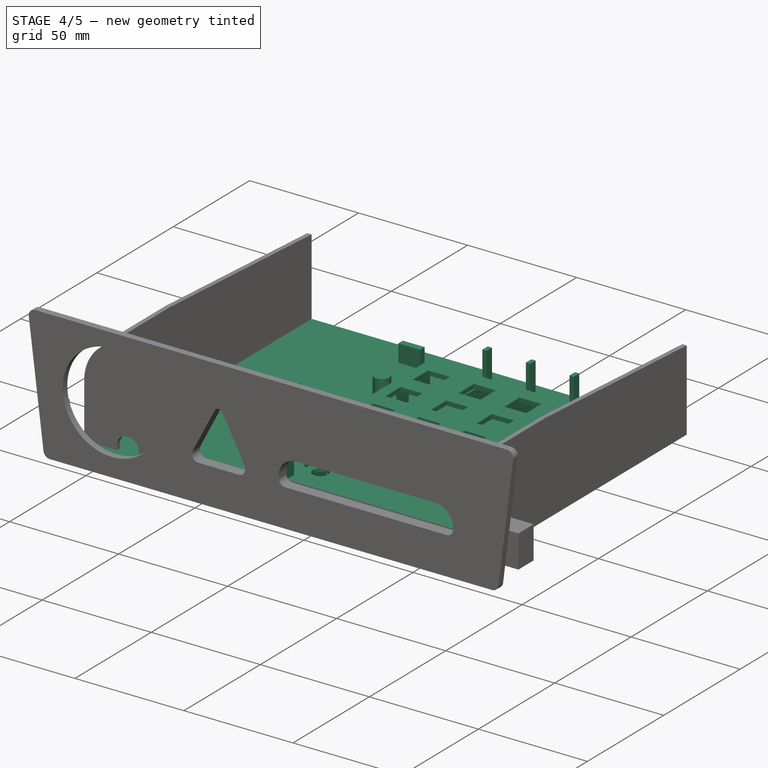
[diagram: stage 4 of 5 — iso view after this stage's code; geometry added in this stage tinted green]
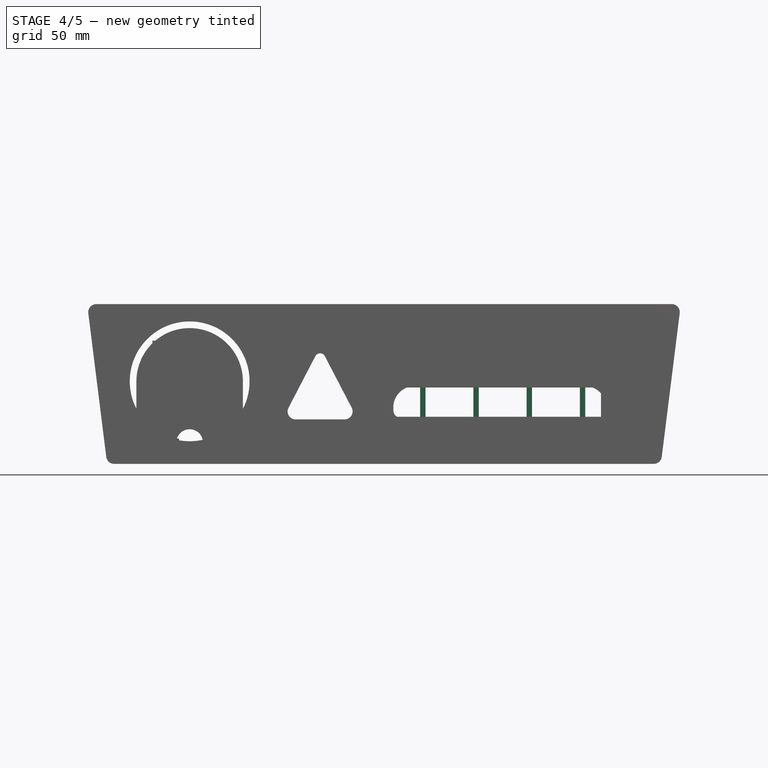
[diagram: stage 4 of 5 — front view after this stage's code; geometry added in this stage tinted green]
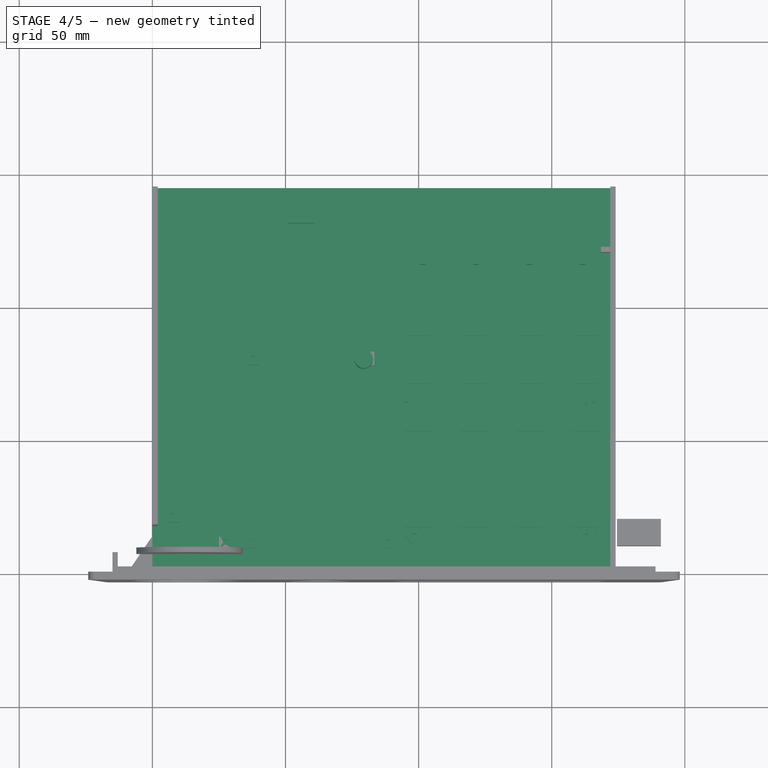
[diagram: stage 4 of 5 — top view after this stage's code; geometry added in this stage tinted green]
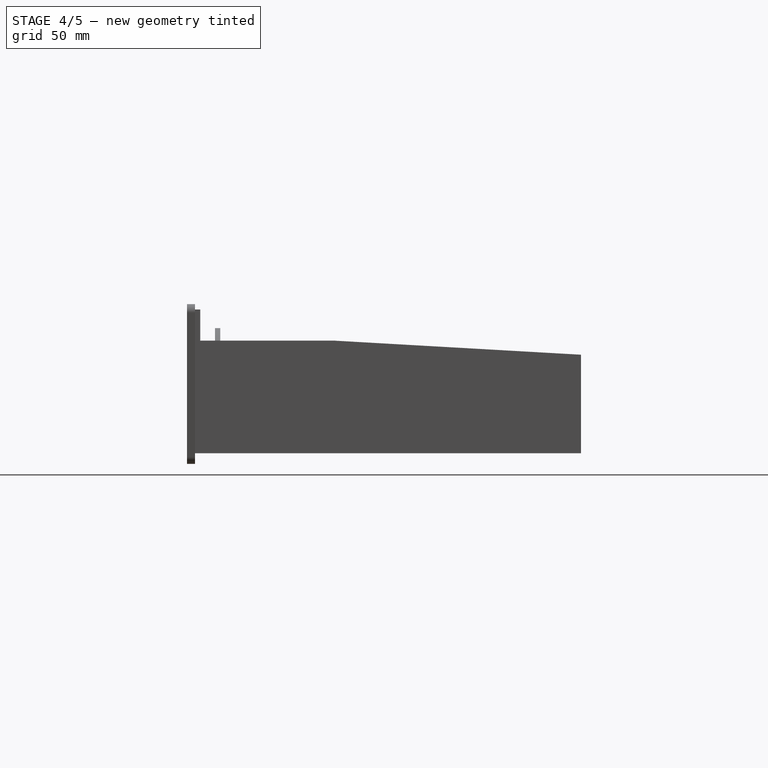
[diagram: stage 4 of 5 — right view after this stage's code; geometry added in this stage tinted green]
FEATURE [Part::Box] Box016  label="UsbHubDelimiter"
  AttacherType = Attacher::AttachEngine3D
  Height = 10
  Length = 10
  Placement = pos=(51,131.75,0) rot=(0,0,1;0rad)
  Width = 3
  expr: Placement.Base.y = UsbHub.Placement.Base.y - Spreadsheet.usbhub_thickness / 2 * 1mm
  expr: Placement.Base.x = UsbHub.Placement.Base.x - Length - 1mm
FEATURE [Part::Box] Box018  label="Cube004"
  AttacherType = Attacher::AttachEngine3D
  Height = 24.7
  Length = 2
  Placement = pos=(100.575,116,2) rot=(0,0,1;0rad)
  Width = 3.5
  expr: Height = PhoneCradleTop.Placement.Base.z + PhoneCradleTop.Height - BottomBack.Height
  expr: Placement.Base.z = Cube003.Placement.Base.z
  expr: Placement.Base.y = Cube003.Placement.Base.y + Cube003.Width - Width
  expr: Placement.Base.x = Cube003.Placement.Base.x
  expr: Length = Cube003.Length
FEATURE [Part::MultiFuse] Fusion001
  Shapes = -> [Box017,Box018]
FEATURE [Part::FeaturePython] Array003  # Draft array (typed FeaturePython)
  Angle = 360
  ArrayType = 0
  Axis = (0,0,1)
  Base = -> Fusion001
  Center = (0,0,0)
  Fuse = false
  IntervalAxis = (0,0,0)
  IntervalX = (20,0,0)
  IntervalY = (0,1,0)
  IntervalZ = (0,0,1)
  NumberPolar = 1
  NumberX = 4
  NumberY = 1
  NumberZ = 1
FEATURE [Part::MultiFuse] Fusion002
  Shapes = -> [Box019,Array003]
FEATURE [Part::Cut] Cut007
  Base = -> Fusion002
  Tool = -> Cylinder010
FEATURE [Part::Box] Box021  label="Cube008"
  AttacherType = Attacher::AttachEngine3D
  Height = 10.2
  Length = 36
  Placement = pos=(112.5,2.17,2) rot=(0,0,1;0rad)
  Width = 1.5
  expr: Placement.Base.x = ChargerAHole.Placement.Base.x - Length / 2
  expr: Placement.Base.y = PhoneCradleBottom.Placement.Base.y
  expr: Placement.Base.z = BottomBack.Height
  expr: Height = PhoneCradleBottom.Placement.Base.z - BottomBack.Height
  expr: Length = ChargerAHole.Radius
FEATURE [Part::Box] Box023  label="Cube010"
  AttacherType = Attacher::AttachEngine3D
  Height = 11
  Length = 1
  Placement = pos=(170.5,2.17,13.7) rot=(0,0,1;0rad)
  Width = 94
  expr: Length = 1
  expr: Placement.Base.y = PhoneCradleBottom.Placement.Base.y
  expr: Placement.Base.x = PhoneCradleBottom.Placement.Base.x + PhoneCradleBottom.Length - Length
  expr: Placement.Base.z = PhoneCradleBottom.Placement.Base.z + PhoneCradleBottom.Height
  expr: Height = PhoneBody.Height + 3mm
  expr: Width = PhoneCradleBottom.Width
FEATURE [Part::Mirroring] Part__Mirroring002  label="Cube010 (Mirror #3)"
  Base = (130.5,0,0)
  Normal = (1,0,0)
  Source = -> Box023
  expr: Base.x = Phone.Placement.Base.x + PhoneBody.Length / 2
FEATURE [Part::Box] Box024  label="Cube011"
  AttacherType = Attacher::AttachEngine3D
  Height = 10.2
  Length = 2
  Placement = pos=(89.5,17.17,2) rot=(0,0,1;0rad)
  Width = 10
  expr: Placement.Base.y = PhoneCradleBottom.Placement.Base.y + 15mm
  expr: Placement.Base.x = PhoneCradleBottom.Placement.Base.x
  expr: Placement.Base.z = BottomBack.Height
  expr: Height = PhoneCradleBottom.Placement.Base.z - BottomBack.Height
FEATURE [Part::Box] Box025  label="Cube012"
  AttacherType = Attacher::AttachEngine3D
  Height = 15
  Length = 4
  Placement = pos=(88.1667,7.17,12.2) rot=(0,0,1;0rad)
  Width = 8
  expr: Placement.Base.z = PhoneCradleBottom.Placement.Base.z
  expr: Placement.Base.y = PhoneCradleBottom.Placement.Base.y + 5mm
  expr: Placement.Base.x = PhoneCradleBottom.Placement.Base.x - Length / 3
FEATURE [Part::FeaturePython] Array006  # Draft array (typed FeaturePython)
  Angle = 360
  ArrayType = 0
  Axis = (0,0,1)
  Base = -> Box025
  Center = (0,0,0)
  Fuse = false
  IntervalAxis = (0,0,0)
  IntervalX = (1,0,0)
  IntervalY = (0,15,0)
  IntervalZ = (0,0,1)
  NumberPolar = 1
  NumberX = 1
  NumberY = 6
  NumberZ = 1
FEATURE [Part::Cut] Cut008
  Base = -> Part__Mirroring002
  Tool = -> Array006
FEATURE [Part::Box] Box026  label="PhoneCradleTop"
  AttacherType = Attacher::AttachEngine3D
  Height = 2
  Length = 82
  Placement = pos=(89.5,2.17,24.7) rot=(0,0,1;0rad)
  Width = 94
  expr: Placement.Base.z = Cube010.Placement.Base.z + Cube010.Height
  expr: Placement.Base.y = PhoneCradleBottom.Placement.Base.y
  expr: Placement.Base.x = PhoneCradleBottom.Placement.Base.x
  expr: Width = PhoneCradleBottom.Width
  expr: Length = PhoneCradleBottom.Length
FEATURE [Part::Box] Box027  label="Cube014"
  AttacherType = Attacher::AttachEngine3D
  Height = 10
  Length = 10
  Width = 10
FEATURE [Part::FeaturePython] Array007  # Draft array (typed FeaturePython)
  Angle = 360
  ArrayType = 0
  Axis = (0,0,1)
  Base = -> Box027
  Center = (0,0,0)
  Fuse = false
  IntervalAxis = (0,0,0)
  IntervalX = (21,0,0)
  IntervalY = (0,18,0)
  IntervalZ = (0,0,1)
  NumberPolar = 1
  NumberX = 4
  NumberY = 5
  NumberZ = 1
  Placement = pos=(94.5,7.17,20.7) rot=(0,0,1;0rad)
  expr: Placement.Base.z = PhoneCradleTop.Placement.Base.z + PhoneCradleTop.Height / 2 - Cube014.Height / 2
  expr: Placement.Base.y = PhoneCradleTop.Placement.Base.y + 5mm
  expr: Placement.Base.x = PhoneCradleTop.Placement.Base.x + 5mm
FEATURE [Part::Cut] Cut009
  Base = -> Box026
  Tool = -> Array007
FEATURE [Part::MultiFuse] Fusion003
  Shapes = -> [Cut007,Box021,Box024,Cut008,Cut009]
FEATURE [Part::Box] Box035  label="Cube027"
  AttacherType = Attacher::AttachEngine3D
  Height = 36
  Length = 2.5
  Placement = pos=(83.4,7.1,2) rot=(0,0,1;0rad)
  Width = 10
  expr: Height = Cube020.Height
  expr: Placement.Base.z = Cube020.Placement.Base.z + Cube020.Height - Height
  expr: Placement.Base.x = Cube020.Placement.Base.x + 2 * (Flasher.Placement.Base.x + FlasherBody.Length / 2 - Cube020.Placement.Base.x) - Length
  expr: Placement.Base.y = Cube020.Placement.Base.y
  expr: Width = Cube020.Width
  expr: Length = Cube020.Length
FEATURE [Part::FeaturePython] Clone005  label="anchor001"  # Draft clone (typed FeaturePython)
  AttacherType = Attacher::AttachEngine3D
  Fuse = false
  Objects = -> [Cut010]
  Placement = pos=(85.9,9.6,2) rot=(0,0,1;0rad)
  Scale = (1,1,1)
  expr: Placement.Base.z = Cube027.Placement.Base.z
  expr: Placement.Base.y = Cube027.Placement.Base.y + Cube027.Width / 2 - AnchorBody.Width / 2
  expr: Placement.Base.x = Cube027.Placement.Base.x + Cube027.Length
FEATURE [Part::FeaturePython] Clone007  label="Anchor002"  # Draft clone (typed FeaturePython)
  AttacherType = Attacher::AttachEngine3D
  Fuse = false
  Objects = -> [Cut010]
  Placement = pos=(35.1,9.6,2) rot=(0,0,1;0rad)
  Scale = (1,1,1)
  expr: Placement.Base.z = Cube020.Placement.Base.z
  expr: Placement.Base.y = Cube020.Placement.Base.y + Cube020.Width / 2 - AnchorBody.Width / 2
  expr: Placement.Base.x = Cube020.Placement.Base.x - AnchorBody.Length
FEATURE [Part::FeaturePython] Clone008  label="Anchor003"  # Draft clone (typed FeaturePython)
  AttacherType = Attacher::AttachEngine3D
  Fuse = false
  Objects = -> [Cut010]
  Placement = pos=(35.1,78.5,2) rot=(0,0,1;0rad)
  Scale = (1,1,1)
  expr: Placement.Base.z = Cube022.Placement.Base.z
  expr: Placement.Base.y = Cube022.Placement.Base.y + Cube022.Width / 2 - AnchorBody.Width / 2
  expr: Placement.Base.x = Cube022.Placement.Base.x - AnchorBody.Length
FEATURE [Part::Mirroring] Part__Mirroring007  label="Anchor003 (Mirror #8)"
  Base = (0,0,5.5)
  Normal = (0,0,1)
  Source = -> Clone008
  expr: Base.z = Anchor003.Placement.Base.z + AnchorBody.Height
FEATURE [Part::FeaturePython] Clone009  label="Anchor004"  # Draft clone (typed FeaturePython)
  AttacherType = Attacher::AttachEngine3D
  Fuse = false
  Objects = -> [Cut010]
  Placement = pos=(5,19.5,2) rot=(0,0,1;0rad)
  Scale = (1,1,1)
  expr: Placement.Base.z = BottomBack.Placement.Base.z + BottomBack.Height
  expr: Placement.Base.y = BltBackSupportL.Placement.Base.y + 10mm
  expr: Placement.Base.x = BltBackSupportL.Placement.Base.x + BltBackSupportLPad.Length
FEATURE [Part::FeaturePython] Clone010  label="Anchor005"  # Draft clone (typed FeaturePython)
  AttacherType = Attacher::AttachEngine3D
  Fuse = false
  Objects = -> [Cut010]
  Placement = pos=(25,9.5,2) rot=(0,0,1;0rad)
  Scale = (1,1,1)
  expr: Placement.Base.z = BottomBack.Placement.Base.z + BottomBack.Height
  expr: Placement.Base.y = BltBack.Placement.Base.y + BltBack.Width
  expr: Placement.Base.x = BltBackSupportR.Base.x + BltBackSupportR.Base.x - BltBackSupportL.Placement.Base.x
FEATURE [Part::Mirroring] Part__Mirroring012  label="Cube006 (Mirror #13)"
  Base = (130.5,0,0)
  Normal = (1,0,0)
  Source = -> Box020
  expr: Base.x = ChargerAHole.Placement.Base.x
FEATURE [Part::Mirroring] Part__Mirroring013  label="Cube007 (Mirror #14)"
  Base = (130.5,0,0)
  Normal = (1,0,0)
  Source = -> Clone003
  expr: Base.x = ChargerAHole.Placement.Base.x
FEATURE [Part::Mirroring] Part__Mirroring014  label="Anchor006 (Mirror #15)"
  Base = (0,0,5.5)
  Normal = (0,0,1)
  Source = -> Part__Mirroring011
  expr: Base.z = Anchor006.Placement.Base.z + AnchorBody.Height
FEATURE [Part::Mirroring] Part__Mirroring015  label="Anchor006 (Mirror #16)"
  Base = (0,0,5.5)
  Normal = (0,0,1)
  Source = -> Clone011
  expr: Base.z = Anchor006.Placement.Base.z + AnchorBody.Height
FEATURE [Part::Mirroring] Part__Mirroring017  label="Anchor007 (Mirror #18)"
  Base = (0,0,5.5)
  Normal = (0,0,1)
  Source = -> Clone012
  expr: Base.z = Anchor007.Placement.Base.z + AnchorBody.Height
FEATURE [Part::Mirroring] Part__Mirroring018  label="Anchor007 (Mirror #19)"
  Base = (0,0,5.5)
  Normal = (0,0,1)
  Source = -> Part__Mirroring016
  expr: Base.z = Anchor007.Placement.Base.z + AnchorBody.Height
FEATURE [Part::Cylinder] Cylinder013  label="AnchorHole"
  Angle = 360
  AttacherType = Attacher::AttachEngine3D
  Height = 15
  Placement = pos=(2.5,2.5,0) rot=(0,0,1;0rad)
  Radius = 3.5
  expr: Placement.Base.y = AnchorScrew.Placement.Base.y
  expr: Placement.Base.x = AnchorScrew.Placement.Base.x
FEATURE [Part::FeaturePython] Clone013  label="AnchorHole001"  # Draft clone (typed FeaturePython)
  AttacherType = Attacher::AttachEngine3D
  Fuse = false
  Objects = -> [Cylinder013]
  Placement = pos=(97.3266,14.6551,2) rot=(0,0,1;0rad)
  Scale = (1,1,1)
  expr: Placement.Base.z = Anchor006.Placement.Base.z
  expr: Placement.Base.y = Anchor006.Placement.Base.y + 4mm
  expr: Placement.Base.x = Anchor006.Placement.Base.x - 1mm
FEATURE [Part::Mirroring] Part__Mirroring019  label="AnchorHole001 (Mirror #20)"
  Base = (130.5,0,0)
  Normal = (1,0,0)
  Source = -> Clone013
  expr: Base.x = ChargerAHole.Placement.Base.x
FEATURE [Part::FeaturePython] Clone014  label="AnchorHole002"  # Draft clone (typed FeaturePython)
  AttacherType = Attacher::AttachEngine3D
  Fuse = false
  Objects = -> [Cylinder013]
  Placement = pos=(95.3279,65.25,2) rot=(0,0,1;0rad)
  Scale = (1,1,1)
  expr: Placement.Base.z = Anchor007.Placement.Base.z
  expr: Placement.Base.y = Anchor007.Placement.Base.y + 2.5mm
  expr: Placement.Base.x = Anchor007.Placement.Base.x + 3.5mm
FEATURE [Part::Mirroring] Part__Mirroring020  label="AnchorHole002 (Mirror #21)"
  Base = (130.5,0,0)
  Normal = (1,0,0)
  Source = -> Clone014
  expr: Base.x = ChargerAHole.Placement.Base.x
FEATURE [Part::Cut] Cut011
  Base = -> Fusion003
  Tool = -> Clone013
FEATURE [Part::Cut] Cut012
  Base = -> Cut011
  Tool = -> Part__Mirroring019
FEATURE [Part::Cut] Cut013
  Base = -> Cut012
  Tool = -> Clone014
FEATURE [Part::Cut] Cut014
  Base = -> Cut013
  Tool = -> Part__Mirroring020
FEATURE [Part::FeaturePython] Clone024  label="AnchorHole003"  # Draft clone (typed FeaturePython)
  AttacherType = Attacher::AttachEngine3D
  Fuse = false
  Objects = -> [Cylinder013]
  Placement = pos=(79.4,80.5,9) rot=(0,0,1;0rad)
  Scale = (1,1,1)
  expr: Placement.Base.z = Anchor001.Placement.Base.z + 2 * AnchorBody.Height
  expr: Placement.Base.y = Anchor001.Placement.Base.y + 2mm
  expr: Placement.Base.x = Anchor001.Placement.Base.x + 1mm
FEATURE [Part::MultiFuse] Fusion011  label="PhoneCradle"
  Shapes = -> [Cut014,Part__Mirroring012,Part__Mirroring014,Part__Mirroring017,Part__Mirroring013,Part__Mirroring018,Part__Mirroring015,Clone003,Box020,Box023]
FEATURE [Part::Compound] Compound007  label="Bottom"
  Links = -> [Box,Part__Mirroring016,Part__Mirroring011,Clone007,Clone008,Box016,Clone006,Clone005,Clone012,Clone011,Clone009,Clone010]
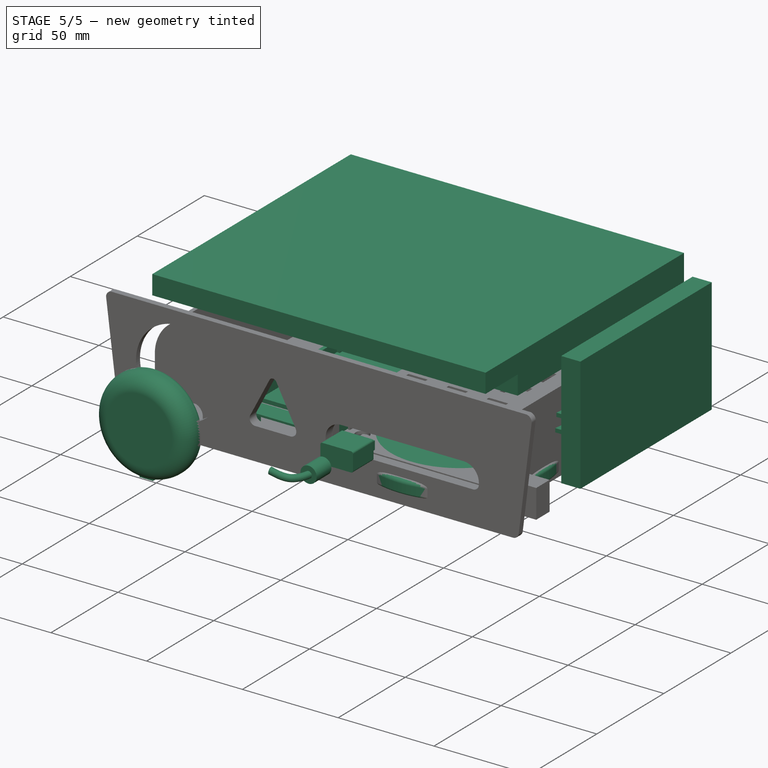
[diagram: stage 5 of 5 — iso view after this stage's code; geometry added in this stage tinted green]
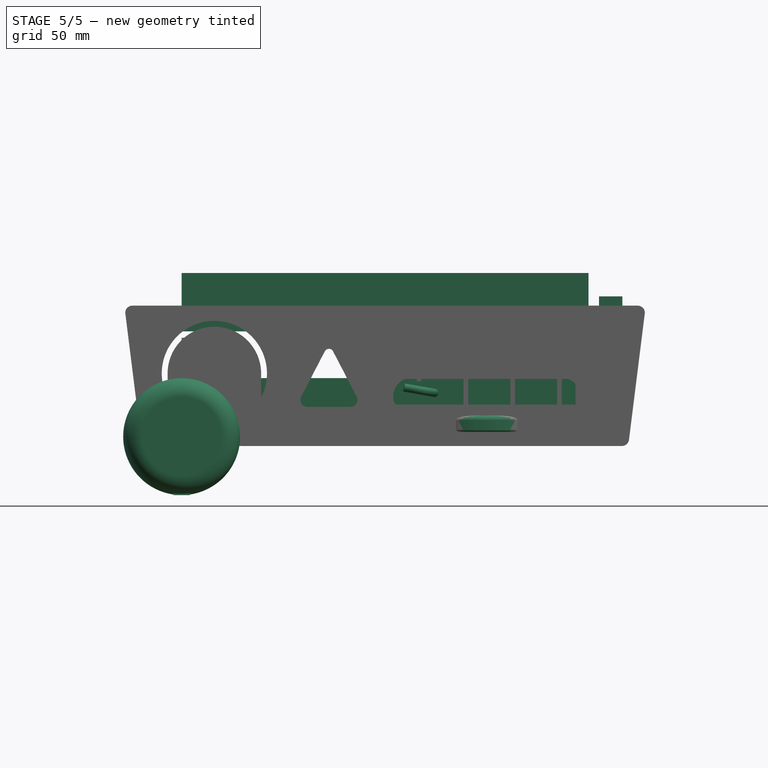
[diagram: stage 5 of 5 — front view after this stage's code; geometry added in this stage tinted green]
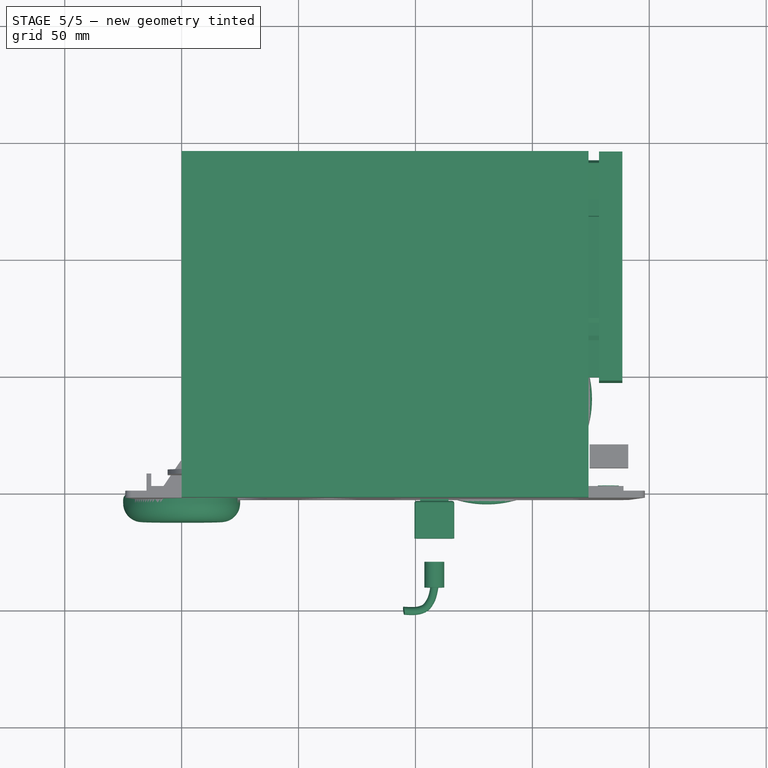
[diagram: stage 5 of 5 — top view after this stage's code; geometry added in this stage tinted green]
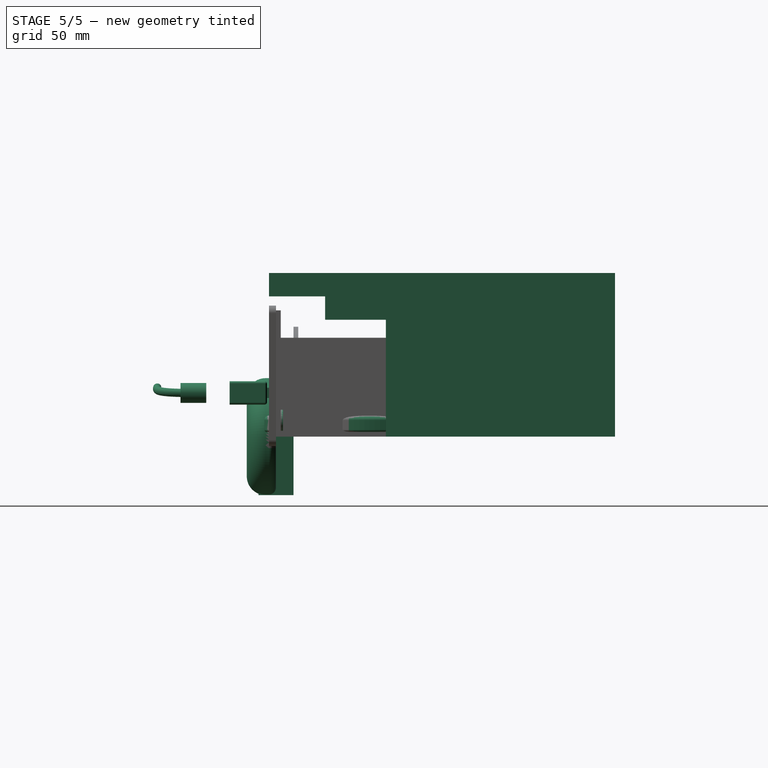
[diagram: stage 5 of 5 — right view after this stage's code; geometry added in this stage tinted green]
FEATURE [Part::Fillet] Fillet007  label="BluetoothOld"
  Base = -> Cylinder006
  Edges = 2 edges: [Edge1 r=8,Edge3 r=3]
FEATURE [Part::FeaturePython] Clone  label="TestUsbCable"  # Draft clone (typed FeaturePython)
  AttacherType = Attacher::AttachEngine3D
  Fuse = false
  Objects = -> [Compound]
  Placement = pos=(102,0,16.5) rot=(0,0,-1;1.5708rad)
  Scale = (1,1,1)
FEATURE [Part::Box] Box010  label="BluetoothCordHole"
  AttacherType = Attacher::AttachEngine3D
  Height = 25
  Length = 7
  Placement = pos=(-3.5,-7.5,-25) rot=(0,0,1;0rad)
  Width = 15
  expr: Placement.Base.z = Bluetooth.Placement.Base.z - Height
  expr: Placement.Base.y = Face.Placement.Base.y - Width / 2
  expr: Placement.Base.x = Bluetooth.Placement.Base.x - Length / 2
FEATURE [Part::Box] Box011  label="Back"
  AttacherType = Attacher::AttachEngine3D
  Height = 25
  Length = 174
  Placement = pos=(0,143,0) rot=(0,0,1;0rad)
  Width = 2
  expr: Placement.Base.y = BottomBack.Placement.Base.y + BottomBack.Width - Width
  expr: Width = Spreadsheet.thickness
  expr: Length = BottomBack.Length
FEATURE [Part::FeaturePython] Clone002  label="ChargerBUsb"  # Draft clone (typed FeaturePython)
  AttacherType = Attacher::AttachEngine3D
  Fuse = false
  Objects = -> [Compound003]
  Placement = pos=(-46,0,0) rot=(0,0,1;1.5708rad)
  Scale = (1,1,1)
  expr: Placement.Base.z = ChargerBBody.Placement.Base.z
  expr: Placement.Base.y = ChargerBBody.Placement.Base.y
  expr: Placement.Base.x = ChargerBBody.Placement.Base.x - ChargerBBody.Radius - 1mm
FEATURE [Part::Cylinder] Cylinder009  label="ChargerBBody"
  Angle = 360
  AttacherType = Attacher::AttachEngine3D
  Height = 7
  Radius = 45
FEATURE [Part::Fillet] Fillet010
  Base = -> Cylinder009
  Edges = 2 edges: [Edge1 r=2,Edge3 r=1]
FEATURE [Part::Compound] Compound006  label="ChargerB"
  Links = -> [Fillet010,Clone002]
  Placement = pos=(130.5,40,2) rot=(0,0,1;0rad)
  expr: Placement.Base.z = ChargerA.Placement.Base.z
  expr: Placement.Base.y = ChargerA.Placement.Base.y
  expr: Placement.Base.x = ChargerA.Placement.Base.x
FEATURE [Part::Box] Box029  label="Cube021"
  AttacherType = Attacher::AttachEngine3D
  Height = 4
  Length = 1.5
  Placement = pos=(42.6,7.1,34) rot=(0,0,1;0rad)
  Width = 10
  expr: Placement.Base.z = Cube020.Placement.Base.z + Cube020.Height - Height
  expr: Placement.Base.y = Cube020.Placement.Base.y
  expr: Placement.Base.x = Cube020.Placement.Base.x + Cube020.Length
  expr: Width = Cube020.Width
FEATURE [Part::Box] Box031  label="Cube023"
  AttacherType = Attacher::AttachEngine3D
  Height = 10
  Length = 1
  Placement = pos=(42.6,76,28) rot=(0,0,1;0rad)
  Width = 10
  expr: Placement.Base.z = Cube022.Placement.Base.z + Cube022.Height - Height
  expr: Placement.Base.y = Cube022.Placement.Base.y
  expr: Placement.Base.x = Cube022.Placement.Base.x + Cube022.Length
  expr: Width = Cube022.Width
FEATURE [Part::Box] Box032  label="Cube024"
  AttacherType = Attacher::AttachEngine3D
  Height = 4.3
  Length = 2.5
  Placement = pos=(43.6,76,33.7) rot=(0,0,1;0rad)
  Width = 10
  expr: Placement.Base.z = Cube023.Placement.Base.z + Cube023.Height - Height
  expr: Placement.Base.y = Cube023.Placement.Base.y
  expr: Placement.Base.x = Cube023.Placement.Base.x + Cube023.Length
  expr: Width = Cube023.Width
  expr: Length = Cube020.Length
FEATURE [Part::Box] Box033  label="Cube025"
  AttacherType = Attacher::AttachEngine3D
  Height = 7
  Length = 2
  Placement = pos=(39.1,7.1,12) rot=(0,0,1;0rad)
  Width = 78.9
  expr: Placement.Base.z = Cube026.Placement.Base.z
  expr: Placement.Base.y = Cube020.Placement.Base.y
  expr: Placement.Base.x = Cube020.Placement.Base.x - 1mm
  expr: Width = Cube022.Placement.Base.y - Cube020.Placement.Base.y + Cube020.Width
FEATURE [Part::Box] Box034  label="Cube026"
  AttacherType = Attacher::AttachEngine3D
  Height = 2
  Length = 45.8
  Placement = pos=(40.1,19.5,12) rot=(0,0,1;0rad)
  Width = 66.5
  expr: Placement.Base.z = Flasher.Placement.Base.z - Height
  expr: Placement.Base.y = Cube022.Placement.Base.y + Cube022.Width - Width
  expr: Placement.Base.x = Cube020.Placement.Base.x
  expr: Width = FlasherBody.Width + Cube022.Width
  expr: Length = Cube028.Placement.Base.x - Cube022.Placement.Base.x + Cube028.Length
FEATURE [Part::MultiFuse] Fusion004
  Shapes = -> [Box032,Box031,Box029]
FEATURE [Part::Mirroring] Part__Mirroring003  label="Fusion004 (Mirror #4)"
  Base = (63,0,0)
  Normal = (1,0,0)
  Source = -> Fusion004
  expr: Base.x = Flasher.Placement.Base.x + FlasherBody.Length / 2
FEATURE [Part::Box] Box037  label="Cube029"
  AttacherType = Attacher::AttachEngine3D
  Height = 7
  Length = 2
  Placement = pos=(84.9,7.1,12) rot=(0,0,1;0rad)
  Width = 78.9
  expr: Placement.Base.x = Cube027.Placement.Base.x + Cube027.Length - 1mm
  expr: Placement.Base.y = Cube025.Placement.Base.y
  expr: Placement.Base.z = Cube025.Placement.Base.z
  expr: Width = Cube025.Width
FEATURE [Part::Box] Box038  label="Cube030"
  AttacherType = Attacher::AttachEngine3D
  Height = 1
  Length = 45.8
  Placement = pos=(40.1,7.1,12) rot=(0,0,1;0rad)
  Width = 10
  expr: Placement.Base.z = Cube026.Placement.Base.z
  expr: Placement.Base.y = Cube027.Placement.Base.y
  expr: Placement.Base.x = Cube020.Placement.Base.x
  expr: Length = Cube027.Placement.Base.x + Cube027.Length - Cube020.Placement.Base.x
FEATURE [Part::Mirroring] Part__Mirroring004  label="anchor001 (Mirror #5)"
  Base = (0,0,5.5)
  Normal = (0,0,1)
  Source = -> Clone005
  expr: Base.z = anchor001.Placement.Base.z + AnchorBody.Height
FEATURE [Part::Mirroring] Part__Mirroring006  label="Anchor002 (Mirror #7)"
  Base = (0,0,5.5)
  Normal = (0,0,1)
  Source = -> Clone007
  expr: Base.z = Anchor002.Placement.Base.z + AnchorBody.Height
FEATURE [Part::Mirroring] Part__Mirroring008  label="Anchor004 (Mirror #9)"
  Base = (0,0,5.5)
  Normal = (0,0,1)
  Source = -> Clone009
  expr: Base.z = Anchor004.Placement.Base.z + AnchorBody.Height
FEATURE [Part::Mirroring] Part__Mirroring009  label="Anchor005 (Mirror #10)"
  Base = (0,0,5.5)
  Normal = (0,0,1)
  Source = -> Clone010
  expr: Base.z = Anchor005.Placement.Base.z + AnchorBody.Height
FEATURE [Part::Mirroring] Part__Mirroring010  label="Anchor006 (Mirror #11)"
  Base = (0,0,5.5)
  Normal = (0,0,1)
  Source = -> Clone011
  expr: Base.z = Anchor006.Placement.Base.z + AnchorBody.Height
FEATURE [Part::Cylinder] Cylinder017  label="FaceWasherBody"
  Angle = 360
  AttacherType = Attacher::AttachEngine3D
  Height = 1
  Radius = 4.5
FEATURE [Part::Cylinder] Cylinder018  label="FaceWasherScrewHole"
  Angle = 360
  AttacherType = Attacher::AttachEngine3D
  Height = 1
  Radius = 1.6
  expr: Height = FaceWasherBody.Height
FEATURE [Part::Cut] Cut020  label="FaceWasher"
  Base = -> Cylinder017
  Placement = pos=(0,0,-1) rot=(1,0,0;1.5708rad)
  Tool = -> Cylinder018
  expr: Placement.Base.z = FaceAnchor.Placement.Base.z - FaceWasherBody.Height
  expr: Placement.Base.x = FaceAnchorBody.Placement.Base.x
  expr: Placement.Base.y = FaceAnchorBody.Placement.Base.y
FEATURE [Part::FeaturePython] Clone021  label="FaceWasher001"  # Draft clone (typed FeaturePython)
  AttacherType = Attacher::AttachEngine3D
  Fuse = false
  Objects = -> [Cut020]
  Placement = pos=(-8.5,3,7) rot=(1,0,0;1.5708rad)
  Scale = (1,1,1)
  expr: Placement.Base.z = FaceAnchor001.Placement.Base.z
  expr: Placement.Base.y = FaceAnchor001.Placement.Base.y + FaceWasherBody.Height
  expr: Placement.Base.x = FaceAnchor001.Placement.Base.x
FEATURE [Part::FeaturePython] Clone022  label="FaceWasher002"  # Draft clone (typed FeaturePython)
  AttacherType = Attacher::AttachEngine3D
  Fuse = false
  Objects = -> [Cut020]
  Placement = pos=(110,3,35) rot=(1,0,0;1.5708rad)
  Scale = (1,1,1)
  expr: Placement.Base.z = FaceAnchor002.Placement.Base.z
  expr: Placement.Base.y = FaceAnchor002.Placement.Base.y + FaceWasherBody.Height
  expr: Placement.Base.x = FaceAnchor002.Placement.Base.x
FEATURE [Part::Mirroring] Part__Mirroring023  label="FaceWasher001 (Mirror #24)"
  Base = (87,0,0)
  Normal = (1,0,0)
  Source = -> Clone021
  expr: Base.x = BottomBack.Length / 2
FEATURE [Part::FeaturePython] Clone023  label="FaceWasher003"  # Draft clone (typed FeaturePython)
  AttacherType = Attacher::AttachEngine3D
  Fuse = false
  Objects = -> [Cut020]
  Placement = pos=(80,3,7) rot=(1,0,0;1.5708rad)
  Scale = (1,1,1)
  expr: Placement.Base.z = FaceAnchor003.Placement.Base.z
  expr: Placement.Base.y = FaceAnchor003.Placement.Base.y + FaceWasherBody.Height
  expr: Placement.Base.x = FaceAnchor003.Placement.Base.x
FEATURE [App::DocumentObjectGroup] Group004  label="FaceWashers"
  Group = -> [Clone022,Part__Mirroring023,Clone023]
FEATURE [Sketcher::SketchObject] Sketch022
  MapMode = 5
  Placement = pos=(0,0,0) rot=(0.57735,0.57735,0.57735;2.0944rad)
  Support = -> [YZ_Plane014]
  sketch-geometry (30):
    g0: LineSegment StartX=137 StartY=3.2 StartZ=0 EndX=123.283 EndY=6 EndZ=0
    g1: LineSegment [constr] StartX=0 StartY=0 StartZ=0 EndX=145 EndY=0 EndZ=0
    g2: LineSegment StartX=123.283 StartY=6 StartZ=0 EndX=116.301 EndY=6.5 EndZ=0
    g3: LineSegment StartX=115.923 StartY=6.17202 StartZ=0 EndX=116.301 EndY=6.5 EndZ=0
    g4: LineSegment StartX=96.9698 StartY=7.5 StartZ=0 EndX=115.923 EndY=6.17202 EndZ=0
    g5: LineSegment StartX=91.5 StartY=9 StartZ=0 EndX=76 EndY=20 EndZ=0
    g6: LineSegment StartX=73.5068 StartY=20.1847 StartZ=0 EndX=76 EndY=20 EndZ=0
    g7: LineSegment StartX=66.0274 StartY=21.2401 StartZ=0 EndX=71.5123 EndY=20.8338 EndZ=0
    g8: LineSegment StartX=63.959 StartY=20.8919 StartZ=0 EndX=66.0274 EndY=21.2401 EndZ=0
    g9: LineSegment StartX=71.5123 StartY=20.8338 StartZ=0 EndX=73.5068 EndY=20.1847 EndZ=0
    g10: LineSegment StartX=49 StartY=22 StartZ=0 EndX=63.959 EndY=20.8919 EndZ=0
    g11: ArcOfCircle CenterX=99.3055 CenterY=26.74 CenterZ=0 NormalX=0 NormalY=0 NormalZ=1 AngleXU=0 Radius=19.3813 StartAngle=4.29789 EndAngle=4.59158
    g12: LineSegment StartX=137 StartY=5.2 StartZ=0 EndX=123.283 EndY=8 EndZ=0
    g13: LineSegment StartX=123.283 StartY=8 StartZ=0 EndX=116.301 EndY=8.5 EndZ=0
    g14: LineSegment StartX=115.923 StartY=8.17202 StartZ=0 EndX=116.301 EndY=8.5 EndZ=0
    g15: LineSegment StartX=96.9698 StartY=9.5 StartZ=0 EndX=115.923 EndY=8.17202 EndZ=0
    g16: LineSegment StartX=73.6764 StartY=22.1721 StartZ=0 EndX=76.1695 EndY=21.9874 EndZ=0
    g17: LineSegment StartX=66.1751 StartY=23.2346 StartZ=0 EndX=71.6601 EndY=22.8283 EndZ=0
    g18: LineSegment StartX=64.0842 StartY=22.8827 StartZ=0 EndX=66.1751 EndY=23.2346 EndZ=0
    g19: LineSegment StartX=71.6601 StartY=22.8283 StartZ=0 EndX=73.6764 EndY=22.1721 EndZ=0
    g20: LineSegment StartX=49 StartY=24 StartZ=0 EndX=64.0842 EndY=22.8827 EndZ=0
    g21: ArcOfCircle CenterX=99.7115 CenterY=28.74 CenterZ=0 NormalX=0 NormalY=0 NormalZ=1 AngleXU=0 Radius=19.4344 StartAngle=4.34094 EndAngle=4.57084
    g22: LineSegment StartX=137 StartY=5.2 StartZ=0 EndX=137 EndY=3.2 EndZ=0
    g23: LineSegment StartX=49 StartY=24 StartZ=0 EndX=49 EndY=22 EndZ=0
    g24: LineSegment [constr] StartX=68.7699 StartY=21.0369 StartZ=0 EndX=68.7329 EndY=20.5383 EndZ=0
    g25: LineSegment [constr] StartX=63.959 StartY=20.8919 StartZ=0 EndX=73.5068 EndY=20.1847 EndZ=0
    g26: LineSegment StartX=77.1575 StartY=21.631 StartZ=0 EndX=92.6575 EndY=10.631 EndZ=0
    g27: LineSegment [constr] StartX=76 StartY=20 StartZ=0 EndX=77.1575 EndY=21.631 EndZ=0
    g28: LineSegment StartX=76.1695 StartY=21.9874 StartZ=0 EndX=77.1575 EndY=21.631 EndZ=0
    g29: LineSegment [constr] StartX=71.5123 StartY=20.8338 StartZ=0 EndX=71.6601 EndY=22.8283 EndZ=0
  constraints (89):
    c: Coincident(g1,g-1)
    c: PointOnObject(g1,g-1)
    c: Distance(g1) = 145
    c: DistanceX(g0,g1) = 8
    c: DistanceY(g0) = 6
    c: Distance(g0) = 14
    c: Coincident(g2,g0)
    c: DistanceY(g2) = 6.5
    c: Distance(g2) = 7
    c: Coincident(g3,g2)
    c: Distance(g3) = 0.5
    c: Distance(g4) = 19
    c: Coincident(g4,g3)
    c: DistanceY(g4) = 7.5
    c: DistanceY(g5) = 9
    c: DistanceY(g5) = 20
    c: DistanceX(g5,g1) = 53.5
    c: Distance(g6) = 2.5
    c: Coincident(g6,g5)
    c: Distance(g7) = 5.5
    c: Coincident(g8,g7)
    c: Coincident(g9,g7)
    c: Equal(g8,g9)
    c: Coincident(g9,g6)
    c: Coincident(g11,g5)
    c: Coincident(g4,g11)
    c: DistanceY(g0,g11) = 23.54
    c: Equal(g0,g12) = 14
    c: Coincident(g13,g12)
    c: Equal(g2,g13) = 7
    c: Coincident(g14,g13)
    c: Equal(g3,g14) = 0.5
    c: Equal(g4,g15) = 19
    c: Coincident(g15,g14)
    c: Equal(g7,g17) = 5
    c: Coincident(g18,g17)
    c: Coincident(g19,g17)
    c: Equal(g18,g19)
    c: Coincident(g15,g21)
    c: DistanceY(g12,g21) = 23.54
    c: Coincident(g22,g12)
    c: Coincident(g22,g0)
    c: Vertical(g22)
    c: Distance(g22) = 2
    c: DistanceY(g3,g14) = 2
    c: DistanceY(g4,g15) = 2
    c: DistanceY(g0,g12) = 2
    c: Coincident(g23,g20)
    c: Coincident(g23,g10)
    c: Vertical(g23)
    c: Distance(g23) = 2
    c: DistanceY(g10) = 22
    c: Parallel(g20,g10)
    c: Parallel(g7,g10)
    c: Parallel(g6,g7)
    c: Parallel(g17,g7)
    c: Parallel(g16,g6)
    c: Parallel(g9,g19)
    c: Distance(g10) = 15
    c: Coincident(g10,g8)
    c: Coincident(g18,g20)
    c: PointOnObject(g24,g7)
    c: Perpendicular(g7,g24)
    c: Coincident(g25,g8)
    c: Coincident(g6,g25)
    c: PointOnObject(g24,g25)
    c: Distance(g24) = 0.5
    c: Distance(g17,g7) = 2
    c: Parallel(g8,g18)
    c: Symmetric(g6,g8,g24)
    c: Perpendicular(g5,g27)
    c: Distance(g27) = 2
    c: Parallel(g26,g5)
    c: Coincident(g26,g21)
    c: Coincident(g27,g5)
    c: Coincident(g27,g26)
    c: Coincident(g28,g16)
    c: Coincident(g28,g26)
    c: Distance(g21,g5) = 2
    c: Coincident(g19,g16)
    c: Equal(g16,g6)
    c: Coincident(g29,g7)
    c: Coincident(g29,g17)
    c: Perpendicular(g7,g29)
    c: Angle(g3,g4) = 2.35619
    c: Angle(g14,g15) = 2.35619
    c: DistanceX(g5,g1) = 69
    c: DistanceX(g10,g1) = 96
    c: DistanceY(g0) = 3.2
FEATURE [PartDesign::Pad] Pad011  label="Pad012"
  Length = 4.5
  Length2 = 100
  Placement = pos=(0,0,0) rot=(0.57735,0.57735,0.57735;2.0944rad)
  Profile = -> Sketch022
  Reversed = true
  Type = 0
FEATURE [PartDesign::Body] Body013  label="BottomRail"
  Group = -> [Sketch022,Pad011]
  Origin = -> Origin014
  Tip = -> Pad011
FEATURE [Sketcher::SketchObject] Sketch023
  MapMode = 5
  Placement = pos=(0,0,0) rot=(0.57735,0.57735,0.57735;2.0944rad)
  Support = -> [YZ_Plane015]
  sketch-geometry (28):
    g0: LineSegment StartX=125.008 StartY=25.5 StartZ=0 EndX=140.5 EndY=36.5 EndZ=0
    g1: LineSegment [constr] StartX=0 StartY=0 StartZ=0 EndX=145 EndY=0 EndZ=0
    g2: LineSegment StartX=118.026 StartY=26 StartZ=0 EndX=125.008 EndY=25.5 EndZ=0
    g3: LineSegment StartX=117.699 StartY=26.3779 StartZ=0 EndX=74.3225 EndY=29.3307 EndZ=0
    g4: LineSegment StartX=72.2536 StartY=28.9703 StartZ=0 EndX=74.3225 EndY=29.3307 EndZ=0
    g5: LineSegment StartX=66.7663 StartY=29.3439 StartZ=0 EndX=64.7654 EndY=29.9813 EndZ=0
    g6: LineSegment StartX=64.7654 StartY=29.9813 StartZ=0 EndX=49.8 EndY=31 EndZ=0
    g7: LineSegment StartX=66.7663 StartY=29.3439 StartZ=0 EndX=72.2536 EndY=28.9703 EndZ=0
    g8: LineSegment StartX=117.699 StartY=26.3779 StartZ=0 EndX=118.026 EndY=26 EndZ=0
    g9: LineSegment [constr] StartX=64.7654 StartY=29.9813 StartZ=0 EndX=74.3225 EndY=29.3307 EndZ=0
    g10: LineSegment [constr] StartX=69.5439 StartY=29.656 StartZ=0 EndX=69.51 EndY=29.1571 EndZ=0
    g11: LineSegment StartX=126.166 StartY=23.8693 StartZ=0 EndX=141.658 EndY=34.8693 EndZ=0
    g12: LineSegment StartX=117.883 StartY=24.0051 StartZ=0 EndX=124.865 EndY=23.5051 EndZ=0
    g13: LineSegment StartX=117.556 StartY=24.383 StartZ=0 EndX=74.3225 EndY=27.326 EndZ=0
    g14: LineSegment StartX=72.2536 StartY=26.9657 StartZ=0 EndX=74.3225 EndY=27.326 EndZ=0
    g15: LineSegment StartX=66.7663 StartY=27.3393 StartZ=0 EndX=64.7654 EndY=27.9766 EndZ=0
    g16: LineSegment StartX=64.7654 StartY=27.9766 StartZ=0 EndX=49.8 EndY=28.9954 EndZ=0
    g17: LineSegment StartX=66.7663 StartY=27.3393 StartZ=0 EndX=72.2536 EndY=26.9657 EndZ=0
    g18: LineSegment StartX=117.556 StartY=24.383 StartZ=0 EndX=117.883 EndY=24.0051 EndZ=0
    g19: LineSegment [constr] StartX=64.7654 StartY=27.9766 StartZ=0 EndX=74.3225 EndY=27.326 EndZ=0
    g20: LineSegment [constr] StartX=69.5439 StartY=27.6513 StartZ=0 EndX=69.51 EndY=27.1525 EndZ=0
    g21: LineSegment StartX=140.5 StartY=36.5 StartZ=0 EndX=141.658 EndY=34.8693 EndZ=0
    g22: LineSegment StartX=49.8 StartY=31 StartZ=0 EndX=49.8 EndY=28.9954 EndZ=0
    g23: LineSegment [constr] StartX=57.1249 StartY=28.4967 StartZ=0 EndX=57.2607 EndY=30.4921 EndZ=0
    g24: LineSegment [constr] StartX=57.1249 StartY=28.4967 StartZ=0 EndX=57.2607 EndY=30.4921 EndZ=0
    g25: LineSegment [constr] StartX=137.645 StartY=32.0202 StartZ=0 EndX=136.488 EndY=33.651 EndZ=0
    g26: LineSegment [constr] StartX=117.883 StartY=24.0051 StartZ=0 EndX=118.026 EndY=26 EndZ=0
    g27: ArcOfCircle CenterX=125.008 CenterY=25.5 CenterZ=0 NormalX=0 NormalY=0 NormalZ=1 AngleXU=0 Radius=2 StartAngle=4.6409 EndAngle=5.32983
  constraints (82):
    c: Coincident(g1,g-1)
    c: Horizontal(g1)
    c: Distance(g1) = 145
    c: DistanceX(g0,g1) = 4.5
    c: DistanceY(g0) = 36.5
    c: DistanceY(g0) = 25.5
    c: Coincident(g2,g0)
    c: Coincident(g4,g3)
    c: Equal(g5,g4)
    c: Coincident(g5,g6)
    c: Distance(g6) = 15
    c: DistanceY(g6) = 31
    c: Distance(g7) = 5.5
    c: Coincident(g5,g7)
    c: Coincident(g7,g4)
    c: Coincident(g8,g2)
    c: Coincident(g3,g8)
    c: Distance(g8) = 0.5
    c: Parallel(g7,g3)
    c: Parallel(g6,g7)
    c: Distance(g2) = 7
    c: DistanceY(g2) = 26
    c: Angle(g2,g8) = 2.35619
    c: Coincident(g9,g5)
    c: Coincident(g9,g3)
    c: DistanceX(g6,g1) = 95.2
    c: PointOnObject(g10,g9)
    c: PointOnObject(g10,g7)
    c: Distance(g10) = 0.5
    c: Symmetric(g5,g4,g10)
    c: Symmetric(g5,g3,g10)
    c: Coincident(g14,g13)
    c: Equal(g15,g14)
    c: Coincident(g15,g16)
    c: Equal(g6,g16) = 15
    c: Equal(g7,g17) = 5.5
    c: Coincident(g15,g17)
    c: Coincident(g17,g14)
    c: Coincident(g18,g12)
    c: Coincident(g13,g18)
    c: Equal(g8,g18) = 0.5
    c: Parallel(g17,g13)
    c: Parallel(g16,g17)
    c: Angle(g12,g18) = 2.35619
    c: Coincident(g19,g15)
    c: Coincident(g19,g13)
    c: PointOnObject(g20,g19)
    c: PointOnObject(g20,g17)
    c: Equal(g10,g20) = 0.5
    c: Symmetric(g15,g14,g20)
    c: Symmetric(g15,g13,g20)
    c: Coincident(g21,g0)
    c: Coincident(g21,g11)
    c: Coincident(g22,g6)
    c: Coincident(g22,g16)
    c: Vertical(g22)
    c: PointOnObject(g23,g13)
    c: PointOnObject(g23,g3)
    c: Perpendicular(g13,g23)
    c: Distance(g23) = 2
    c: PointOnObject(g24,g16)
    c: PointOnObject(g24,g6)
    c: Perpendicular(g16,g24)
    c: Equal(g24,g23)
    c: PointOnObject(g25,g11)
    c: PointOnObject(g25,g0)
    c: Perpendicular(g11,g25)
    c: Parallel(g11,g0)
    c: Equal(g25,g23)
    c: Perpendicular(g12,g26)
    c: Equal(g26,g25)
    c: Distance(g4) = 2.1
    c: Equal(g14,g4)
    c: Equal(g11,g0)
    c: Perpendicular(g11,g21)
    c: Equal(g12,g2)
    c: Coincident(g26,g2)
    c: Coincident(g26,g12)
    c: Coincident(g27,g0)
    c: Coincident(g27,g12)
    c: Coincident(g27,g11)
    c: Distance(g11) = 19
FEATURE [PartDesign::Pad] Pad012  label="Pad013"
  Length = 4.5
  Length2 = 100
  Placement = pos=(0,0,0) rot=(0.57735,0.57735,0.57735;2.0944rad)
  Profile = -> Sketch023
  Reversed = true
  Type = 0
FEATURE [PartDesign::Body] Body014  label="TopRail"
  Group = -> [Sketch023,Pad012]
  Origin = -> Origin015
  Tip = -> Pad012
FEATURE [Part::Mirroring] Part__Mirroring024  label="BottomRail (Mirror #25)"
  Base = (87,0,0)
  Normal = (1,0,0)
  Source = -> Body013
  expr: Base.x = BottomBack.Placement.Base.x + BottomBack.Length / 2
FEATURE [Part::Mirroring] Part__Mirroring025  label="TopRail (Mirror #26)"
  Base = (87,0,0)
  Normal = (1,0,0)
  Source = -> Body014
  expr: Base.x = BottomBack.Placement.Base.x + BottomBack.Length / 2
FEATURE [Part::Box] Box040  label="TopLowBump"
  AttacherType = Attacher::AttachEngine3D
  Height = 15
  Length = 174
  Placement = pos=(0,81.5,45) rot=(0,0,1;0rad)
  Width = 63.5
  expr: Width = 60.5mm + Spreadsheet.face_thickness * 1mm
  expr: Placement.Base.y = 84.5mm - Spreadsheet.face_thickness * 1mm
  expr: Length = BottomBack.Length
FEATURE [Part::Box] Box041  label="TopMiddleBump"
  AttacherType = Attacher::AttachEngine3D
  Height = 10
  Length = 174
  Placement = pos=(0,21,50) rot=(0,0,1;0rad)
  Width = 60.5
  expr: Width = TopLowBump.Placement.Base.y - Placement.Base.y
  expr: Placement.Base.y = 24mm - Spreadsheet.face_thickness * 1mm
  expr: Length = BottomBack.Length
FEATURE [App::DocumentObjectGroup] Group005  label="Sides"
  Group = -> [Part__Mirroring025,Part__Mirroring024,Part__Mirroring]
FEATURE [Part::Box] Box042  label="TopHighBump"
  AttacherType = Attacher::AttachEngine3D
  Height = 10
  Length = 174
  Placement = pos=(0,-3,60) rot=(0,0,1;0rad)
  Width = 148
  expr: Placement.Base.y = FaceRect.Placement.Base.y - Spreadsheet.face_thickness * 1mm
  expr: Width = BottomBack.Width + Spreadsheet.face_thickness * 1mm
  expr: Length = BottomBack.Length
FEATURE [Part::MultiFuse] Fusion010  label="TopBump"
  Refine = true
  Shapes = -> [Box040,Box041,Box042]
FEATURE [Part::Box] Box043  label="SideBump"
  AttacherType = Attacher::AttachEngine3D
  Height = 60
  Length = 10
  Placement = pos=(-14.5,47,0) rot=(0,0,1;0rad)
  Width = 98
  expr: Width = BottomBack.Width - Placement.Base.y
  expr: Placement.Base.y = 50mm - Spreadsheet.face_thickness * 1mm
  expr: Placement.Base.x = -4.5mm - Length
FEATURE [Part::Mirroring] Part__Mirroring026  label="SideBump (Mirror #27)"
  Base = (87,0,0)
  Normal = (1,0,0)
  Source = -> Box043
  expr: Base.x = BottomBack.Placement.Base.x + BottomBack.Length / 2
FEATURE [Part::Mirroring] Part__Mirroring005  label="Anchor001 (Mirror #6)"
  Base = (0,0,5.5)
  Normal = (0,0,1)
  Source = -> Clone006
  expr: Base.z = anchor001.Placement.Base.z + AnchorBody.Height
FEATURE [Part::MultiFuse] Fusion005  label="FlasherCradleFusion"
  Shapes = -> [Box028,Part__Mirroring004,Part__Mirroring005,Box036,Part__Mirroring003,Part__Mirroring007,Box037,Box033,Box030,Box034,Part__Mirroring006,Box038,Box035,Fusion004]
FEATURE [Part::Cut] Cut021  label="FlasherCradle"
  Base = -> Fusion005
  Tool = -> Clone024
FEATURE [Part::MultiFuse] Fusion006  label="BluetoothCradle"
  Shapes = -> [Part__Mirroring009,Part__Mirroring008,Part__Mirroring030,Cut027]
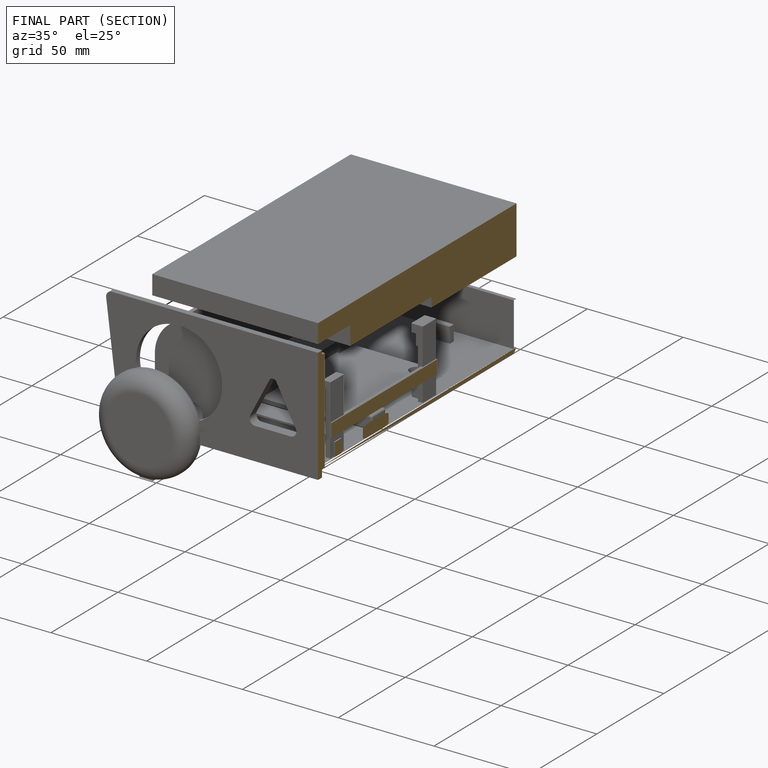
[diagram: finished part — half-section view (interior)]
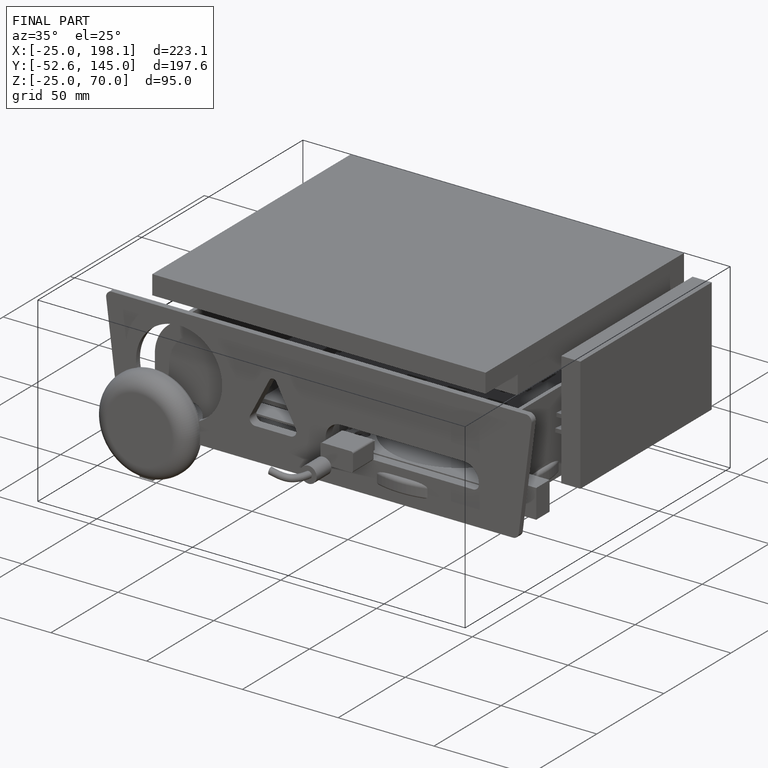
[diagram: finished part — iso view with bounding-box wireframe]
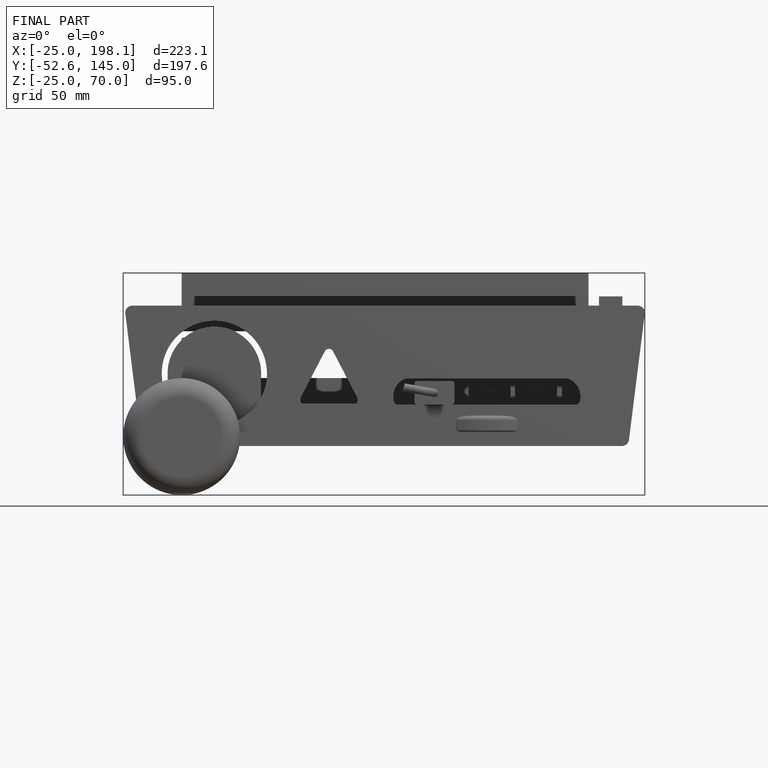
[diagram: finished part — front view with bounding-box wireframe]
